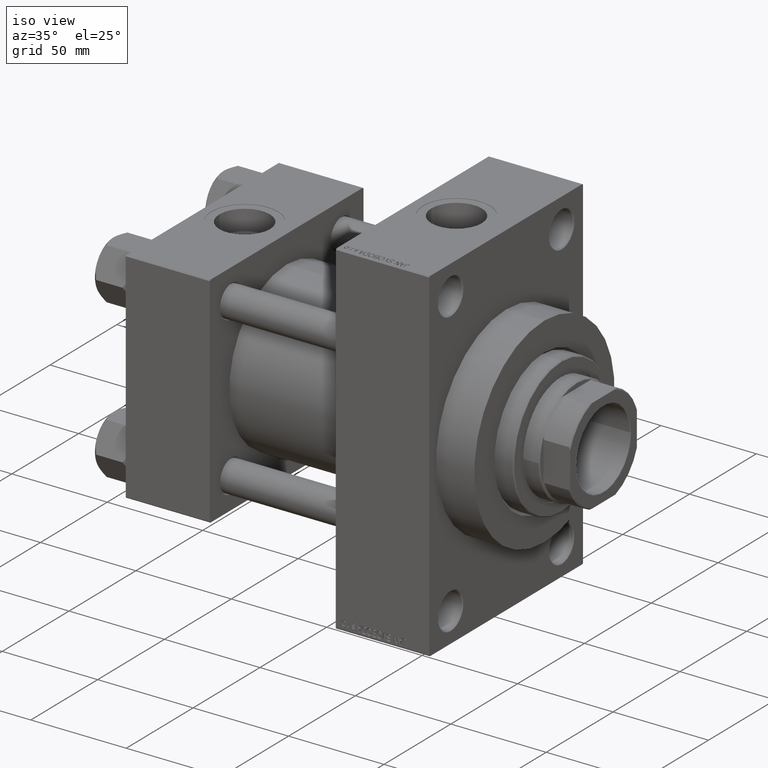
[diagram: clean part render]
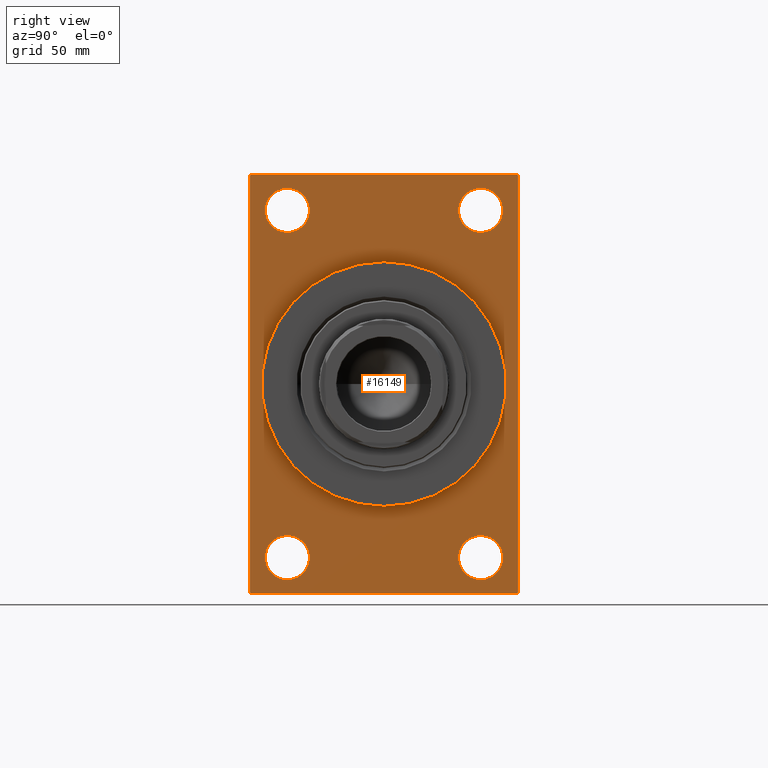
[diagram: tour spotlight — one face highlighted and labeled with its STEP entity id]
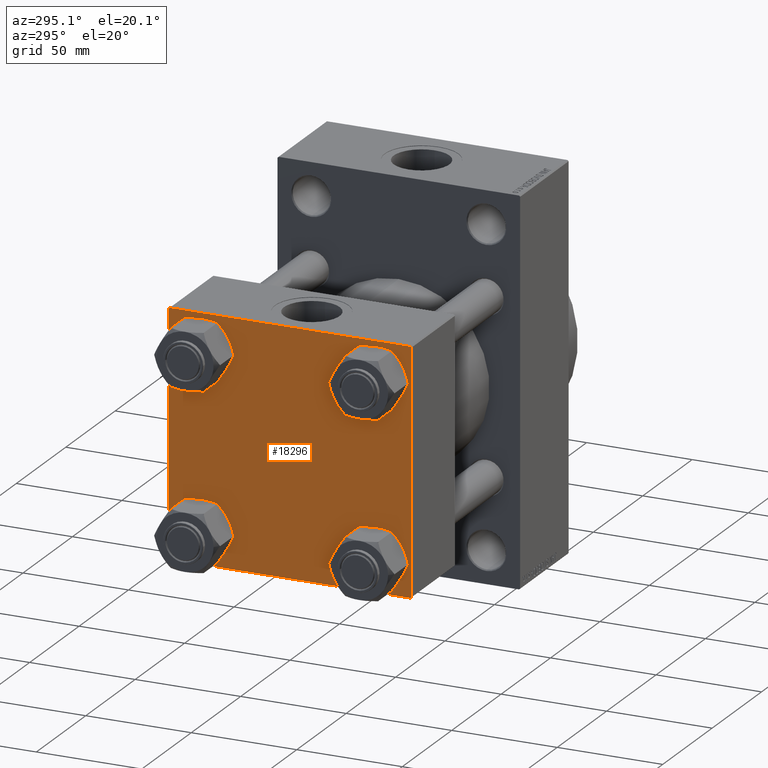
[diagram: tour spotlight — one face highlighted and labeled with its STEP entity id]
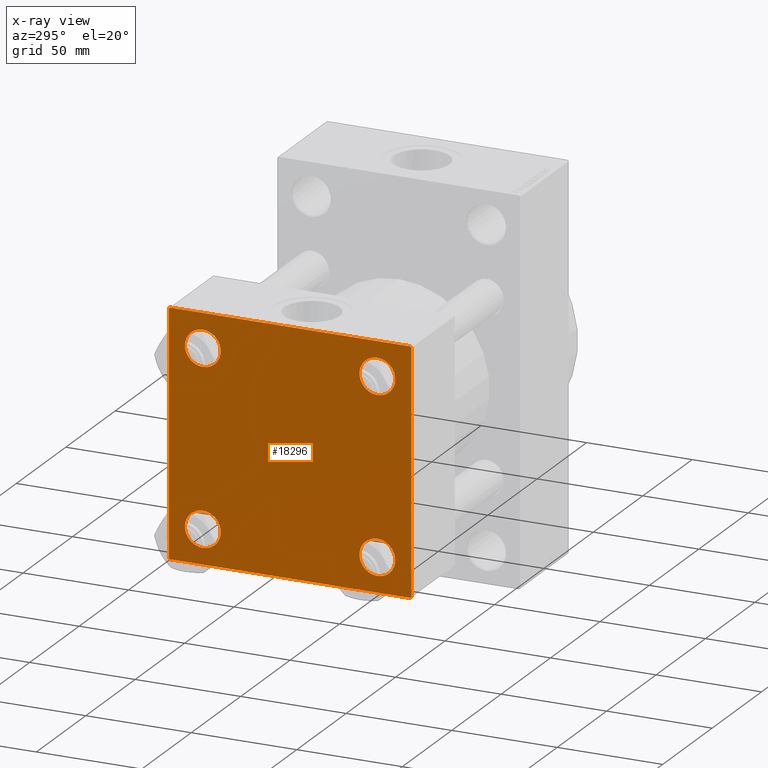
[diagram: x-ray of the same camera — body ghosted, this tour face saturated]
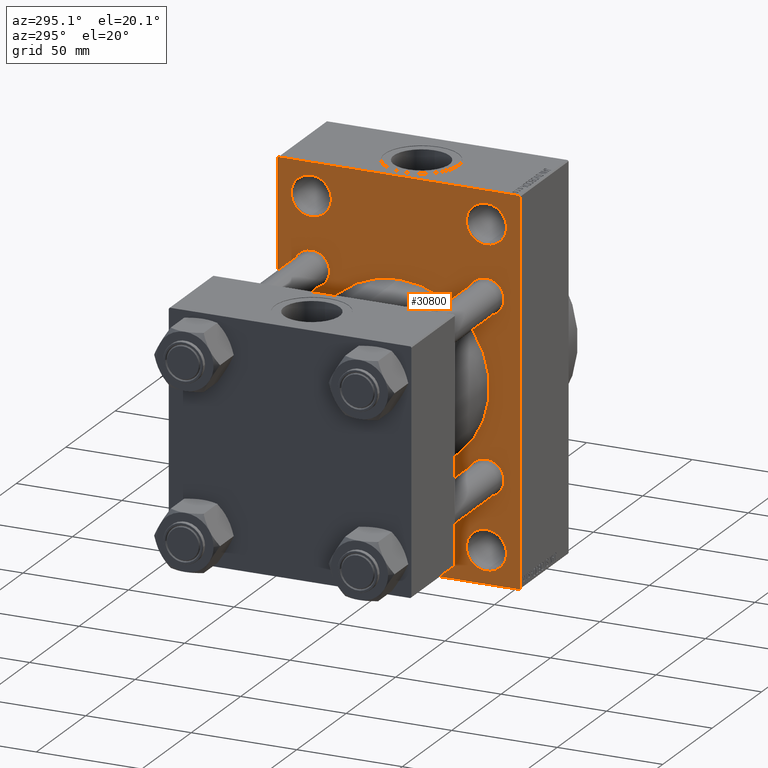
[diagram: tour spotlight — one face highlighted and labeled with its STEP entity id]
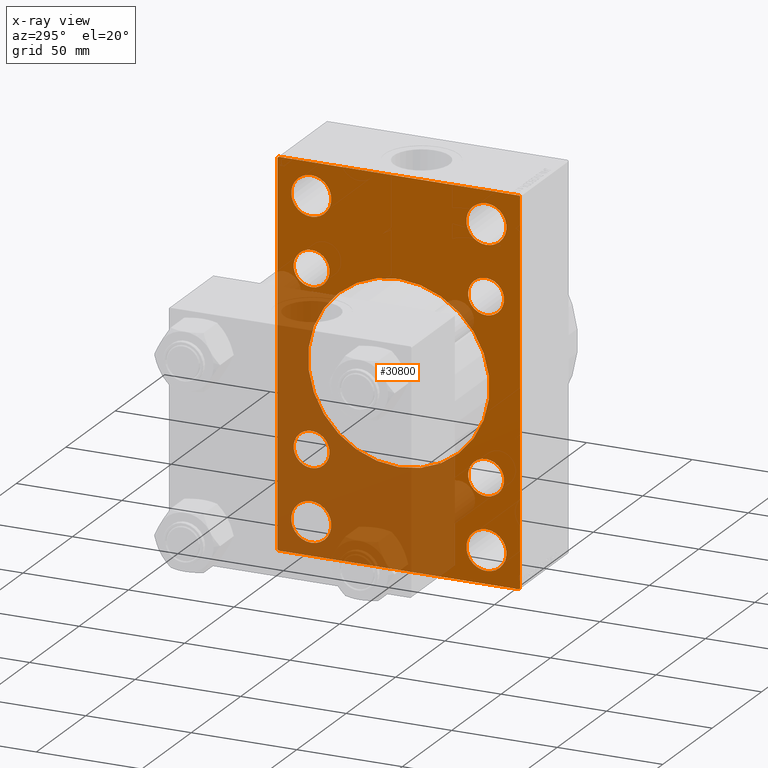
[diagram: x-ray of the same camera — body ghosted, this tour face saturated]
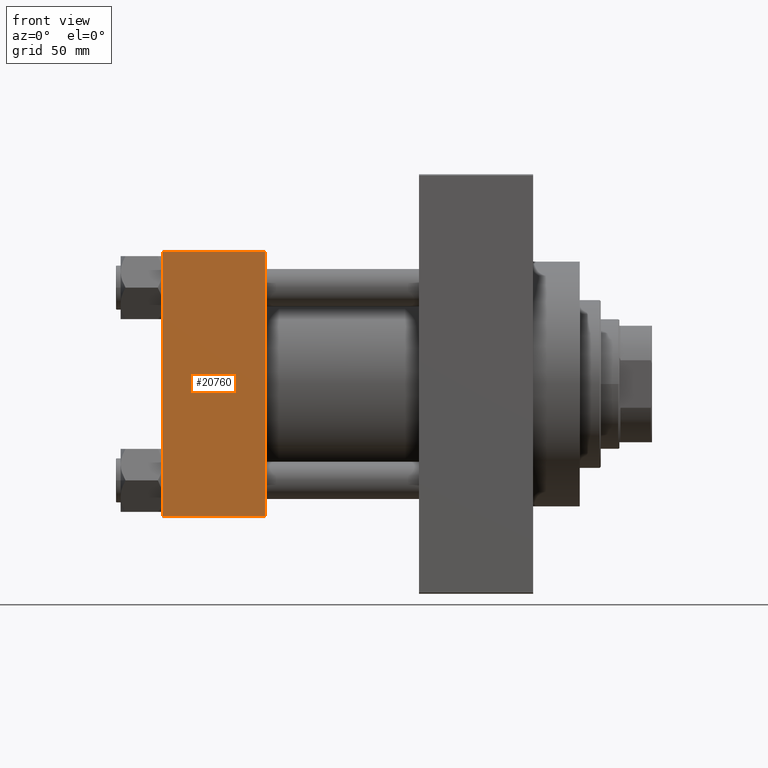
[diagram: tour spotlight — one face highlighted and labeled with its STEP entity id]
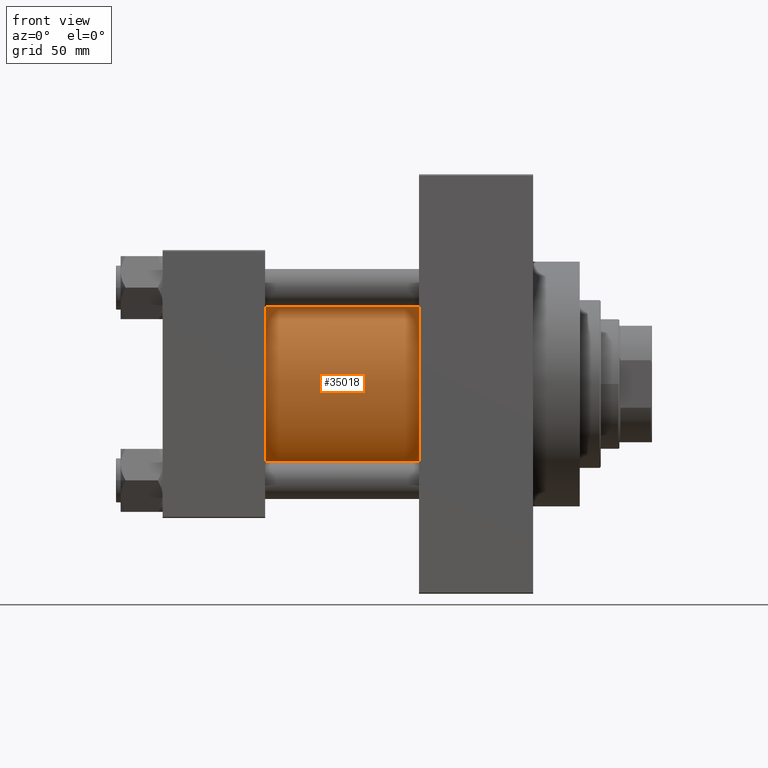
[diagram: tour spotlight — one face highlighted and labeled with its STEP entity id]
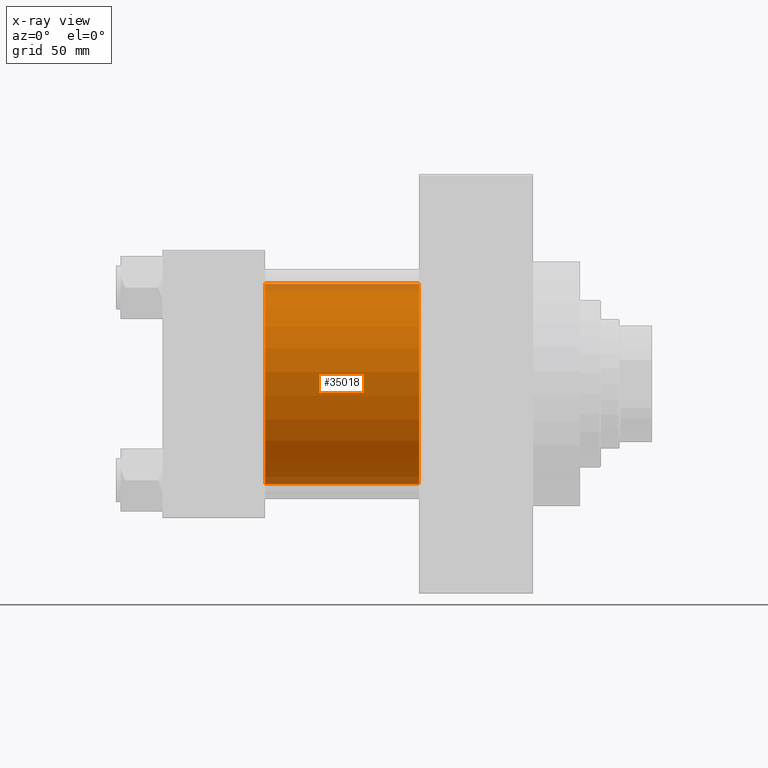
[diagram: x-ray of the same camera — body ghosted, this tour face saturated]
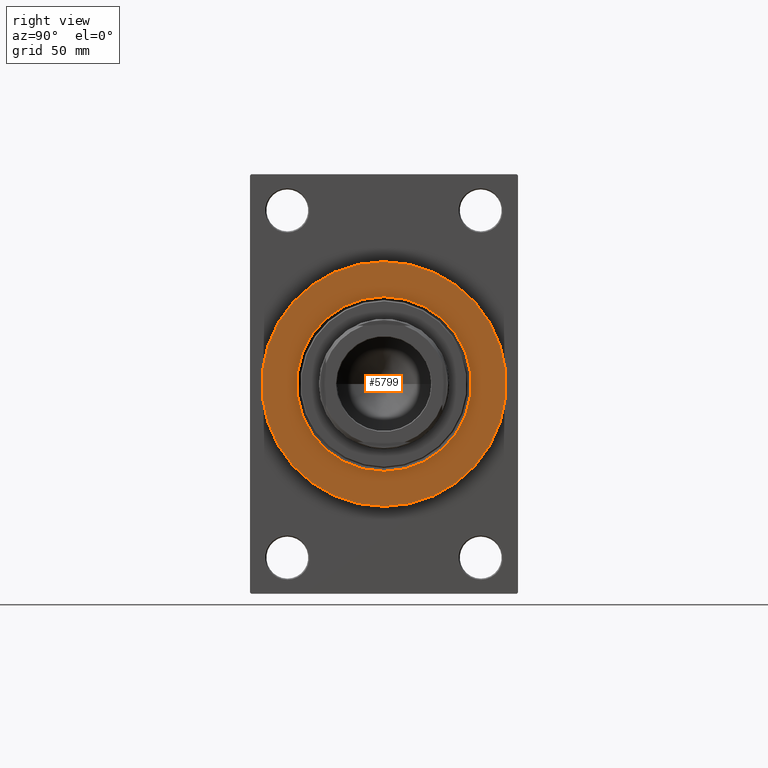
[diagram: tour spotlight — one face highlighted and labeled with its STEP entity id]
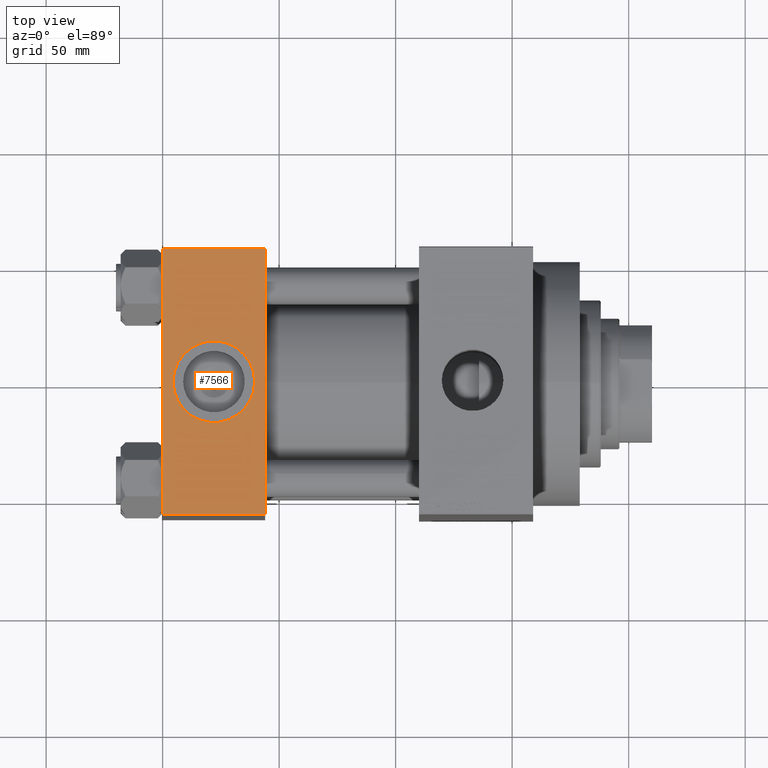
[diagram: tour spotlight — one face highlighted and labeled with its STEP entity id]
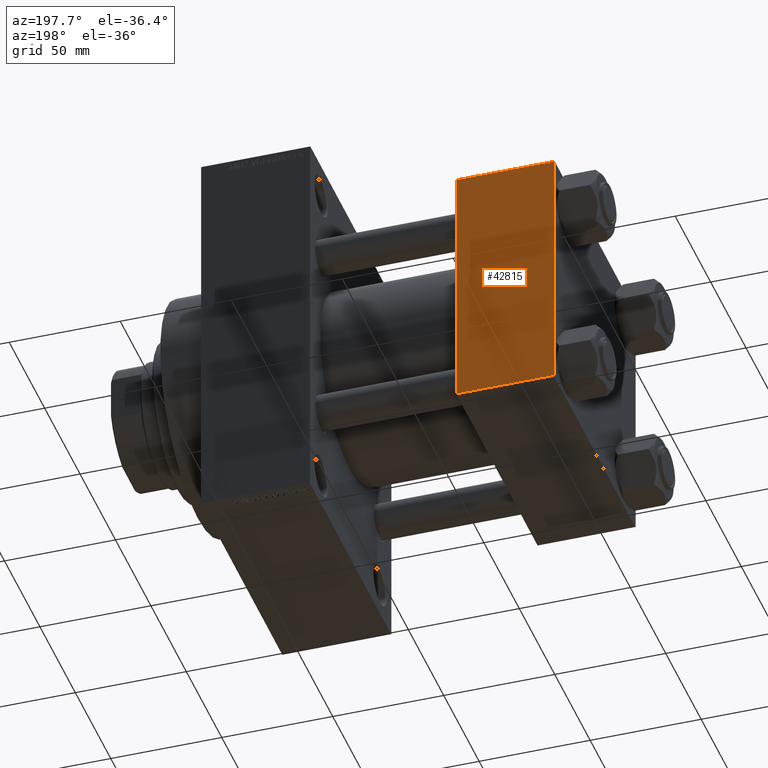
[diagram: tour spotlight — one face highlighted and labeled with its STEP entity id]
A machine part: a face-by-face anatomy tour. The part has 1150 B-rep faces; the first image is the clean iso view, then the 8 largest visible faces are spotlighted one at a time (largest first), each with its STEP entity span.

Face 1 — right view, entity #16149. In plain terms, the highlighted planar face has unit normal (-1, 0, 0).
Definition (entity closure, byte-faithful):
#56 = CARTESIAN_POINT ( 'NONE',  ( 159.0000000000000000, 57.49999999999997868, -89.49999999999990052 ) ) ;
#138 = DIRECTION ( 'NONE',  ( -1.000000000000000000, 0.000000000000000000, -0.000000000000000000 ) ) ;
#158 = CARTESIAN_POINT ( 'NONE',  ( 159.0000000000000000, -41.49999999999999289, 74.50000000000001421 ) ) ;
#187 = PLANE ( 'NONE',  #44802 ) ;
#484 = VERTEX_POINT ( 'NONE', #8277 ) ;
#626 = CARTESIAN_POINT ( 'NONE',  ( 159.0000000000000000, 41.50000000000000711, 84.00000000000001421 ) ) ;
#793 = DIRECTION ( 'NONE',  ( 0.000000000000000000, 0.000000000000000000, 1.000000000000000000 ) ) ;
#1942 = CARTESIAN_POINT ( 'NONE',  ( 159.0000000000000000, -57.50000000000002132, 89.99999999999997158 ) ) ;
#2619 = ORIENTED_EDGE ( 'NONE', *, *, #19336, .T. ) ;
#2687 = VERTEX_POINT ( 'NONE', #22478 ) ;
#2690 = ORIENTED_EDGE ( 'NONE', *, *, #37993, .T. ) ;
#2995 = CARTESIAN_POINT ( 'NONE',  ( 159.0000000000000000, -41.49999999999999289, 74.50000000000001421 ) ) ;
#3158 = ORIENTED_EDGE ( 'NONE', *, *, #16041, .T. ) ;
#3160 = CARTESIAN_POINT ( 'NONE',  ( 159.0000000000000000, -57.50000000000002132, -89.49999999999991473 ) ) ;
#3237 = DIRECTION ( 'NONE',  ( -1.000000000000000000, 0.000000000000000000, -0.000000000000000000 ) ) ;
#3629 = ORIENTED_EDGE ( 'NONE', *, *, #18886, .T. ) ;
#3644 = VERTEX_POINT ( 'NONE', #626 ) ;
#3961 = DIRECTION ( 'NONE',  ( 0.000000000000000000, 0.000000000000000000, 1.000000000000000000 ) ) ;
#4285 = EDGE_LOOP ( 'NONE', ( #10168, #46670 ) ) ;
#4509 = FACE_OUTER_BOUND ( 'NONE', #45794, .T. ) ;
#4889 = DIRECTION ( 'NONE',  ( -1.000000000000000000, 0.000000000000000000, -0.000000000000000000 ) ) ;
#5301 = ORIENTED_EDGE ( 'NONE', *, *, #30059, .T. ) ;
#5469 = LINE ( 'NONE', #24042, #41809 ) ;
#6393 = CARTESIAN_POINT ( 'NONE',  ( 159.0000000000000000, 41.50000000000000711, -84.00000000000000000 ) ) ;
#6849 = AXIS2_PLACEMENT_3D ( 'NONE', #33185, #7828, #22062 ) ;
#7025 = EDGE_CURVE ( 'NONE', #11123, #41233, #46943, .T. ) ;
#7529 = DIRECTION ( 'NONE',  ( 0.000000000000000000, 0.7071067811865574537, -0.7071067811865376918 ) ) ;
#7828 = DIRECTION ( 'NONE',  ( 1.000000000000000000, 0.000000000000000000, 0.000000000000000000 ) ) ;
#7885 = CARTESIAN_POINT ( 'NONE',  ( 159.0000000000000000, -41.49999999999999289, -74.49999999999998579 ) ) ;
#8121 = DIRECTION ( 'NONE',  ( 0.000000000000000000, 0.000000000000000000, 1.000000000000000000 ) ) ;
#8136 = FACE_BOUND ( 'NONE', #26200, .T. ) ;
#8199 = DIRECTION ( 'NONE',  ( 0.000000000000000000, -0.7071067811865474617, 0.7071067811865474617 ) ) ;
#8277 = CARTESIAN_POINT ( 'NONE',  ( 159.0000000000000000, 41.50000000000000711, 65.00000000000000000 ) ) ;
#8446 = ORIENTED_EDGE ( 'NONE', *, *, #16705, .T. ) ;
#8801 = DIRECTION ( 'NONE',  ( -1.000000000000000000, 0.000000000000000000, -0.000000000000000000 ) ) ;
#9530 = EDGE_CURVE ( 'NONE', #42812, #31646, #44586, .T. ) ;
#9539 = CARTESIAN_POINT ( 'NONE',  ( 159.0000000000000000, -56.99999999999996447, -90.00000000000001421 ) ) ;
#9728 = VERTEX_POINT ( 'NONE', #3160 ) ;
#9904 = DIRECTION ( 'NONE',  ( 0.000000000000000000, 0.000000000000000000, -1.000000000000000000 ) ) ;
#10017 = CARTESIAN_POINT ( 'NONE',  ( 159.0000000000000000, 6.429395695523604744E-15, -52.50000000000000711 ) ) ;
#10168 = ORIENTED_EDGE ( 'NONE', *, *, #26954, .F. ) ;
#10647 = ORIENTED_EDGE ( 'NONE', *, *, #22045, .T. ) ;
#10865 = AXIS2_PLACEMENT_3D ( 'NONE', #38485, #8801, #38253 ) ;
#10878 = CARTESIAN_POINT ( 'NONE',  ( 159.0000000000000000, 57.49999999999997868, -90.00000000000000000 ) ) ;
#10910 = ORIENTED_EDGE ( 'NONE', *, *, #38547, .F. ) ;
#11123 = VERTEX_POINT ( 'NONE', #10017 ) ;
#11150 = LINE ( 'NONE', #40589, #47036 ) ;
#11277 = FACE_BOUND ( 'NONE', #17963, .T. ) ;
#11524 = VECTOR ( 'NONE', #45517, 1000.000000000000000 ) ;
#11756 = CARTESIAN_POINT ( 'NONE',  ( 159.0000000000000000, -57.50000000000002132, 89.49999999999994316 ) ) ;
#11758 = FACE_BOUND ( 'NONE', #28765, .T. ) ;
#11882 = EDGE_CURVE ( 'NONE', #24012, #43370, #45275, .T. ) ;
#11928 = DIRECTION ( 'NONE',  ( -1.000000000000000000, 0.000000000000000000, -0.000000000000000000 ) ) ;
#12283 = CARTESIAN_POINT ( 'NONE',  ( 159.0000000000000000, -41.49999999999999289, 84.00000000000001421 ) ) ;
#12813 = LINE ( 'NONE', #1942, #22966 ) ;
#13122 = CARTESIAN_POINT ( 'NONE',  ( 159.0000000000000000, -41.49999999999999289, -83.99999999999998579 ) ) ;
#13499 = VERTEX_POINT ( 'NONE', #36166 ) ;
#14798 = EDGE_CURVE ( 'NONE', #9728, #43474, #11150, .T. ) ;
#14852 = DIRECTION ( 'NONE',  ( 0.000000000000000000, 0.000000000000000000, 1.000000000000000000 ) ) ;
#16041 = EDGE_CURVE ( 'NONE', #13499, #24012, #39292, .T. ) ;
#16149 = ADVANCED_FACE ( 'NONE', ( #8136, #11277, #11758, #37581, #23082, #4509 ), #187, .F. ) ;
#16306 = AXIS2_PLACEMENT_3D ( 'NONE', #33213, #138, #14852 ) ;
#16322 = DIRECTION ( 'NONE',  ( -0.000000000000000000, 0.7071067811865574537, 0.7071067811865376918 ) ) ;
#16705 = EDGE_CURVE ( 'NONE', #31646, #42812, #19376, .T. ) ;
#16834 = CARTESIAN_POINT ( 'NONE',  ( 159.0000000000000000, 57.49999999999997158, 89.99999999999998579 ) ) ;
#17020 = CARTESIAN_POINT ( 'NONE',  ( 159.0000000000000000, -57.50000000000002132, 89.49999999999994316 ) ) ;
#17712 = DIRECTION ( 'NONE',  ( -1.000000000000000000, 0.000000000000000000, -0.000000000000000000 ) ) ;
#17891 = ORIENTED_EDGE ( 'NONE', *, *, #40198, .T. ) ;
#17963 = EDGE_LOOP ( 'NONE', ( #3629, #42930 ) ) ;
#18198 = DIRECTION ( 'NONE',  ( 0.000000000000000000, 0.000000000000000000, 1.000000000000000000 ) ) ;
#18886 = EDGE_CURVE ( 'NONE', #33536, #20342, #20190, .T. ) ;
#18896 = CARTESIAN_POINT ( 'NONE',  ( 159.0000000000000000, 41.50000000000000711, -74.50000000000000000 ) ) ;
#19336 = EDGE_CURVE ( 'NONE', #20434, #13499, #24274, .T. ) ;
#19376 = CIRCLE ( 'NONE', #10865, 9.500000000000008882 ) ;
#20190 = CIRCLE ( 'NONE', #25611, 9.500000000000008882 ) ;
#20342 = VERTEX_POINT ( 'NONE', #46294 ) ;
#20434 = VERTEX_POINT ( 'NONE', #40026 ) ;
#21737 = DIRECTION ( 'NONE',  ( 0.000000000000000000, -1.000000000000000000, -1.206764157201257045E-16 ) ) ;
#22045 = EDGE_CURVE ( 'NONE', #484, #3644, #31456, .T. ) ;
#22062 = DIRECTION ( 'NONE',  ( 0.000000000000000000, 0.000000000000000000, -1.000000000000000000 ) ) ;
#22478 = CARTESIAN_POINT ( 'NONE',  ( 159.0000000000000000, -41.49999999999999289, 65.00000000000000000 ) ) ;
#22822 = VERTEX_POINT ( 'NONE', #12283 ) ;
#22966 = VECTOR ( 'NONE', #9904, 1000.000000000000000 ) ;
#23082 = FACE_BOUND ( 'NONE', #4285, .T. ) ;
#23790 = CIRCLE ( 'NONE', #6849, 52.50000000000000711 ) ;
#24012 = VERTEX_POINT ( 'NONE', #42372 ) ;
#24042 = CARTESIAN_POINT ( 'NONE',  ( 159.0000000000000000, 57.49999999999997868, -89.49999999999995737 ) ) ;
#24274 = LINE ( 'NONE', #30634, #28713 ) ;
#24327 = EDGE_CURVE ( 'NONE', #43370, #9728, #12813, .T. ) ;
#24690 = AXIS2_PLACEMENT_3D ( 'NONE', #2995, #17712, #18198 ) ;
#25611 = AXIS2_PLACEMENT_3D ( 'NONE', #7885, #41175, #8121 ) ;
#25621 = VECTOR ( 'NONE', #40626, 1000.000000000000000 ) ;
#25683 = CARTESIAN_POINT ( 'NONE',  ( 159.0000000000000000, 41.50000000000000711, 74.50000000000001421 ) ) ;
#26200 = EDGE_LOOP ( 'NONE', ( #17891, #5301 ) ) ;
#26303 = DIRECTION ( 'NONE',  ( 1.000000000000000000, 0.000000000000000000, 0.000000000000000000 ) ) ;
#26319 = ORIENTED_EDGE ( 'NONE', *, *, #9530, .T. ) ;
#26407 = ORIENTED_EDGE ( 'NONE', *, *, #30090, .T. ) ;
#26891 = AXIS2_PLACEMENT_3D ( 'NONE', #33332, #26303, #36709 ) ;
#26954 = EDGE_CURVE ( 'NONE', #41233, #11123, #23790, .T. ) ;
#27292 = VERTEX_POINT ( 'NONE', #56 ) ;
#28239 = EDGE_LOOP ( 'NONE', ( #10647, #26407 ) ) ;
#28713 = VECTOR ( 'NONE', #8199, 1000.000000000000114 ) ;
#28765 = EDGE_LOOP ( 'NONE', ( #26319, #8446 ) ) ;
#29158 = AXIS2_PLACEMENT_3D ( 'NONE', #18896, #4889, #793 ) ;
#30032 = CARTESIAN_POINT ( 'NONE',  ( 159.0000000000000000, 56.99999999999992895, -90.00000000000000000 ) ) ;
#30059 = EDGE_CURVE ( 'NONE', #22822, #2687, #47049, .T. ) ;
#30090 = EDGE_CURVE ( 'NONE', #3644, #484, #31625, .T. ) ;
#30198 = ORIENTED_EDGE ( 'NONE', *, *, #37439, .F. ) ;
#30272 = DIRECTION ( 'NONE',  ( 0.000000000000000000, 0.000000000000000000, 1.000000000000000000 ) ) ;
#30634 = CARTESIAN_POINT ( 'NONE',  ( 159.0000000000000000, 56.99999999999994316, 89.99999999999998579 ) ) ;
#31422 = ORIENTED_EDGE ( 'NONE', *, *, #14798, .T. ) ;
#31456 = CIRCLE ( 'NONE', #43781, 9.500000000000008882 ) ;
#31625 = CIRCLE ( 'NONE', #41653, 9.500000000000008882 ) ;
#31646 = VERTEX_POINT ( 'NONE', #46994 ) ;
#31657 = ORIENTED_EDGE ( 'NONE', *, *, #24327, .T. ) ;
#33185 = CARTESIAN_POINT ( 'NONE',  ( 159.0000000000000000, 0.000000000000000000, 0.000000000000000000 ) ) ;
#33213 = CARTESIAN_POINT ( 'NONE',  ( 159.0000000000000000, -41.49999999999999289, -74.49999999999998579 ) ) ;
#33295 = EDGE_CURVE ( 'NONE', #20342, #33536, #40988, .T. ) ;
#33332 = CARTESIAN_POINT ( 'NONE',  ( 159.0000000000000000, 0.000000000000000000, 0.000000000000000000 ) ) ;
#33497 = DIRECTION ( 'NONE',  ( -0.000000000000000000, 0.000000000000000000, 1.000000000000000000 ) ) ;
#33536 = VERTEX_POINT ( 'NONE', #13122 ) ;
#34641 = DIRECTION ( 'NONE',  ( -1.000000000000000000, 0.000000000000000000, -0.000000000000000000 ) ) ;
#34726 = DIRECTION ( 'NONE',  ( 0.000000000000000000, -1.000000000000000000, -1.206764157201257291E-16 ) ) ;
#34928 = CIRCLE ( 'NONE', #47244, 9.500000000000008882 ) ;
#36166 = CARTESIAN_POINT ( 'NONE',  ( 159.0000000000000000, 56.99999999999994316, 89.99999999999998579 ) ) ;
#36709 = DIRECTION ( 'NONE',  ( 0.000000000000000000, 0.000000000000000000, -1.000000000000000000 ) ) ;
#37439 = EDGE_CURVE ( 'NONE', #41314, #43474, #47314, .T. ) ;
#37581 = FACE_BOUND ( 'NONE', #28239, .T. ) ;
#37993 = EDGE_CURVE ( 'NONE', #41314, #27292, #5469, .T. ) ;
#38253 = DIRECTION ( 'NONE',  ( 0.000000000000000000, 0.000000000000000000, 1.000000000000000000 ) ) ;
#38485 = CARTESIAN_POINT ( 'NONE',  ( 159.0000000000000000, 41.50000000000000711, -74.50000000000000000 ) ) ;
#38547 = EDGE_CURVE ( 'NONE', #20434, #27292, #39196, .T. ) ;
#39196 = LINE ( 'NONE', #40867, #25621 ) ;
#39292 = LINE ( 'NONE', #16834, #44008 ) ;
#40026 = CARTESIAN_POINT ( 'NONE',  ( 159.0000000000000000, 57.49999999999997158, 89.49999999999995737 ) ) ;
#40198 = EDGE_CURVE ( 'NONE', #2687, #22822, #34928, .T. ) ;
#40589 = CARTESIAN_POINT ( 'NONE',  ( 159.0000000000000000, -56.99999999999996447, -90.00000000000001421 ) ) ;
#40626 = DIRECTION ( 'NONE',  ( 0.000000000000000000, 3.854941057726238467E-17, -1.000000000000000000 ) ) ;
#40717 = DIRECTION ( 'NONE',  ( -1.000000000000000000, 0.000000000000000000, -0.000000000000000000 ) ) ;
#40867 = CARTESIAN_POINT ( 'NONE',  ( 159.0000000000000000, 57.49999999999997158, 89.99999999999998579 ) ) ;
#40956 = CARTESIAN_POINT ( 'NONE',  ( 159.0000000000000000, 0.000000000000000000, 0.000000000000000000 ) ) ;
#40988 = CIRCLE ( 'NONE', #16306, 9.500000000000008882 ) ;
#41122 = CARTESIAN_POINT ( 'NONE',  ( 159.0000000000000000, 41.50000000000000711, 74.50000000000001421 ) ) ;
#41175 = DIRECTION ( 'NONE',  ( -1.000000000000000000, 0.000000000000000000, -0.000000000000000000 ) ) ;
#41233 = VERTEX_POINT ( 'NONE', #42588 ) ;
#41314 = VERTEX_POINT ( 'NONE', #30032 ) ;
#41653 = AXIS2_PLACEMENT_3D ( 'NONE', #25683, #3237, #3961 ) ;
#41809 = VECTOR ( 'NONE', #16322, 999.9999999999998863 ) ;
#42340 = DIRECTION ( 'NONE',  ( 0.000000000000000000, 0.000000000000000000, 1.000000000000000000 ) ) ;
#42372 = CARTESIAN_POINT ( 'NONE',  ( 159.0000000000000000, -56.99999999999998579, 89.99999999999997158 ) ) ;
#42588 = CARTESIAN_POINT ( 'NONE',  ( 159.0000000000000000, 0.000000000000000000, 52.50000000000000711 ) ) ;
#42812 = VERTEX_POINT ( 'NONE', #6393 ) ;
#42930 = ORIENTED_EDGE ( 'NONE', *, *, #33295, .T. ) ;
#43324 = VECTOR ( 'NONE', #21737, 1000.000000000000000 ) ;
#43370 = VERTEX_POINT ( 'NONE', #17020 ) ;
#43474 = VERTEX_POINT ( 'NONE', #9539 ) ;
#43781 = AXIS2_PLACEMENT_3D ( 'NONE', #41122, #11928, #30272 ) ;
#44008 = VECTOR ( 'NONE', #34726, 1000.000000000000000 ) ;
#44586 = CIRCLE ( 'NONE', #29158, 9.500000000000008882 ) ;
#44802 = AXIS2_PLACEMENT_3D ( 'NONE', #40956, #40717, #33497 ) ;
#45275 = LINE ( 'NONE', #11756, #11524 ) ;
#45517 = DIRECTION ( 'NONE',  ( -0.000000000000000000, -0.7071067811865524577, -0.7071067811865426878 ) ) ;
#45794 = EDGE_LOOP ( 'NONE', ( #31657, #31422, #30198, #2690, #10910, #2619, #3158, #46948 ) ) ;
#46294 = CARTESIAN_POINT ( 'NONE',  ( 159.0000000000000000, -41.49999999999999289, -64.99999999999997158 ) ) ;
#46670 = ORIENTED_EDGE ( 'NONE', *, *, #7025, .F. ) ;
#46943 = CIRCLE ( 'NONE', #26891, 52.50000000000000711 ) ;
#46948 = ORIENTED_EDGE ( 'NONE', *, *, #11882, .T. ) ;
#46994 = CARTESIAN_POINT ( 'NONE',  ( 159.0000000000000000, 41.50000000000000711, -64.99999999999998579 ) ) ;
#47036 = VECTOR ( 'NONE', #7529, 999.9999999999998863 ) ;
#47049 = CIRCLE ( 'NONE', #24690, 9.500000000000008882 ) ;
#47244 = AXIS2_PLACEMENT_3D ( 'NONE', #158, #34641, #42340 ) ;
#47314 = LINE ( 'NONE', #10878, #43324 ) ;

Face 2 — auxiliary view, entity #18296. An x-ray twin of the same camera follows (body ghosted, this face saturated) — the face is partly hidden behind the body. In plain terms, the highlighted planar face has unit normal (-1, 0, 0).
Definition (entity closure, byte-faithful):
#167 = EDGE_LOOP ( 'NONE', ( #6959, #9392 ) ) ;
#1040 = CARTESIAN_POINT ( 'NONE',  ( 0.000000000000000000, -41.34999999999998721, 32.85000000000001563 ) ) ;
#1105 = EDGE_LOOP ( 'NONE', ( #32860, #22440 ) ) ;
#1363 = LINE ( 'NONE', #45057, #1421 ) ;
#1421 = VECTOR ( 'NONE', #23557, 1000.000000000000000 ) ;
#1463 = CARTESIAN_POINT ( 'NONE',  ( 0.000000000000000000, 57.00000000000000711, 57.50000000000000711 ) ) ;
#1467 = DIRECTION ( 'NONE',  ( 1.000000000000000000, -0.000000000000000000, 0.000000000000000000 ) ) ;
#1475 = CIRCLE ( 'NONE', #4550, 8.499999999999992895 ) ;
#1652 = AXIS2_PLACEMENT_3D ( 'NONE', #25068, #40036, #24833 ) ;
#1678 = FACE_BOUND ( 'NONE', #167, .T. ) ;
#2043 = CARTESIAN_POINT ( 'NONE',  ( 0.000000000000000000, -41.34999999999998721, -41.35000000000000853 ) ) ;
#4115 = DIRECTION ( 'NONE',  ( 1.000000000000000000, -0.000000000000000000, 0.000000000000000000 ) ) ;
#4205 = VERTEX_POINT ( 'NONE', #41050 ) ;
#4474 = ORIENTED_EDGE ( 'NONE', *, *, #23467, .T. ) ;
#4550 = AXIS2_PLACEMENT_3D ( 'NONE', #7001, #14480, #14000 ) ;
#4864 = VERTEX_POINT ( 'NONE', #6564 ) ;
#5032 = VERTEX_POINT ( 'NONE', #1463 ) ;
#5075 = VERTEX_POINT ( 'NONE', #6029 ) ;
#5127 = VERTEX_POINT ( 'NONE', #31870 ) ;
#5287 = CIRCLE ( 'NONE', #41549, 8.499999999999992895 ) ;
#5540 = PLANE ( 'NONE',  #33319 ) ;
#5551 = AXIS2_PLACEMENT_3D ( 'NONE', #5776, #31134, #17354 ) ;
#5671 = DIRECTION ( 'NONE',  ( 0.000000000000000000, 0.000000000000000000, 1.000000000000000000 ) ) ;
#5776 = CARTESIAN_POINT ( 'NONE',  ( 0.000000000000000000, -41.34999999999998721, -41.35000000000000853 ) ) ;
#5847 = EDGE_CURVE ( 'NONE', #14196, #14846, #46899, .T. ) ;
#6029 = CARTESIAN_POINT ( 'NONE',  ( 0.000000000000000000, 41.34999999999999432, -49.85000000000000142 ) ) ;
#6050 = EDGE_LOOP ( 'NONE', ( #29572, #47401 ) ) ;
#6467 = ORIENTED_EDGE ( 'NONE', *, *, #22602, .T. ) ;
#6490 = AXIS2_PLACEMENT_3D ( 'NONE', #16182, #1467, #16651 ) ;
#6564 = CARTESIAN_POINT ( 'NONE',  ( 0.000000000000000000, -57.50000000000000711, 57.00000000000000711 ) ) ;
#6754 = DIRECTION ( 'NONE',  ( -0.000000000000000000, -0.7071067811865376918, -0.7071067811865573427 ) ) ;
#6778 = EDGE_CURVE ( 'NONE', #4864, #44798, #1363, .T. ) ;
#6822 = DIRECTION ( 'NONE',  ( 1.000000000000000000, -0.000000000000000000, 0.000000000000000000 ) ) ;
#6959 = ORIENTED_EDGE ( 'NONE', *, *, #18246, .T. ) ;
#7001 = CARTESIAN_POINT ( 'NONE',  ( 0.000000000000000000, -41.34999999999998721, 41.35000000000000853 ) ) ;
#7613 = EDGE_CURVE ( 'NONE', #5032, #13624, #31781, .T. ) ;
#8749 = CARTESIAN_POINT ( 'NONE',  ( 0.000000000000000000, 57.24999999999922551, 57.25000000000081712 ) ) ;
#9032 = LINE ( 'NONE', #34868, #10639 ) ;
#9381 = LINE ( 'NONE', #31843, #41477 ) ;
#9392 = ORIENTED_EDGE ( 'NONE', *, *, #26953, .T. ) ;
#9694 = CARTESIAN_POINT ( 'NONE',  ( 0.000000000000000000, 57.49999999999999289, 57.00000000000003553 ) ) ;
#9726 = LINE ( 'NONE', #46648, #31578 ) ;
#10115 = DIRECTION ( 'NONE',  ( -1.000000000000000000, 0.000000000000000000, -0.000000000000000000 ) ) ;
#10432 = VERTEX_POINT ( 'NONE', #9694 ) ;
#10618 = CARTESIAN_POINT ( 'NONE',  ( 0.000000000000000000, 57.25000000000081712, -57.24999999999922551 ) ) ;
#10639 = VECTOR ( 'NONE', #23745, 1000.000000000000114 ) ;
#10838 = EDGE_LOOP ( 'NONE', ( #42643, #25502 ) ) ;
#10840 = CIRCLE ( 'NONE', #17813, 8.499999999999992895 ) ;
#11981 = CARTESIAN_POINT ( 'NONE',  ( 0.000000000000000000, 41.34999999999999432, 32.85000000000000853 ) ) ;
#12504 = ORIENTED_EDGE ( 'NONE', *, *, #6778, .F. ) ;
#12569 = CARTESIAN_POINT ( 'NONE',  ( 0.000000000000000000, -41.34999999999998721, 49.85000000000000853 ) ) ;
#12605 = DIRECTION ( 'NONE',  ( 0.000000000000000000, 0.7071067811865573427, -0.7071067811865376918 ) ) ;
#12664 = CIRCLE ( 'NONE', #6490, 8.499999999999992895 ) ;
#12934 = EDGE_CURVE ( 'NONE', #5127, #34276, #9726, .T. ) ;
#13428 = DIRECTION ( 'NONE',  ( 0.000000000000000000, -1.000000000000000000, -1.206764157201257045E-16 ) ) ;
#13624 = VERTEX_POINT ( 'NONE', #24119 ) ;
#14000 = DIRECTION ( 'NONE',  ( 0.000000000000000000, 0.000000000000000000, 1.000000000000000000 ) ) ;
#14196 = VERTEX_POINT ( 'NONE', #11981 ) ;
#14288 = ORIENTED_EDGE ( 'NONE', *, *, #25244, .T. ) ;
#14480 = DIRECTION ( 'NONE',  ( 1.000000000000000000, -0.000000000000000000, 0.000000000000000000 ) ) ;
#14716 = CARTESIAN_POINT ( 'NONE',  ( 0.000000000000000000, 57.49999999999999289, 57.50000000000000711 ) ) ;
#14846 = VERTEX_POINT ( 'NONE', #19572 ) ;
#14878 = VERTEX_POINT ( 'NONE', #12569 ) ;
#14949 = LINE ( 'NONE', #14716, #39961 ) ;
#15930 = EDGE_CURVE ( 'NONE', #45739, #5075, #10840, .T. ) ;
#16182 = CARTESIAN_POINT ( 'NONE',  ( 0.000000000000000000, -41.34999999999998721, 41.35000000000000853 ) ) ;
#16651 = DIRECTION ( 'NONE',  ( 0.000000000000000000, 0.000000000000000000, 1.000000000000000000 ) ) ;
#17354 = DIRECTION ( 'NONE',  ( 0.000000000000000000, 0.000000000000000000, 1.000000000000000000 ) ) ;
#17522 = EDGE_CURVE ( 'NONE', #14846, #14196, #24786, .T. ) ;
#17717 = EDGE_LOOP ( 'NONE', ( #6467, #4474, #20204, #14288, #12504, #22558, #42672, #42540 ) ) ;
#17813 = AXIS2_PLACEMENT_3D ( 'NONE', #41248, #26042, #29919 ) ;
#17918 = VERTEX_POINT ( 'NONE', #1040 ) ;
#18246 = EDGE_CURVE ( 'NONE', #34944, #24340, #27906, .T. ) ;
#18296 = ADVANCED_FACE ( 'NONE', ( #24117, #1678, #45837, #46794, #28460 ), #5540, .T. ) ;
#19572 = CARTESIAN_POINT ( 'NONE',  ( 0.000000000000000000, 41.34999999999999432, 49.85000000000000142 ) ) ;
#20204 = ORIENTED_EDGE ( 'NONE', *, *, #12934, .T. ) ;
#21334 = DIRECTION ( 'NONE',  ( 1.000000000000000000, -0.000000000000000000, 0.000000000000000000 ) ) ;
#22440 = ORIENTED_EDGE ( 'NONE', *, *, #23456, .T. ) ;
#22558 = ORIENTED_EDGE ( 'NONE', *, *, #24936, .T. ) ;
#22602 = EDGE_CURVE ( 'NONE', #10432, #4205, #14949, .T. ) ;
#23456 = EDGE_CURVE ( 'NONE', #17918, #14878, #1475, .T. ) ;
#23467 = EDGE_CURVE ( 'NONE', #4205, #5127, #28723, .T. ) ;
#23557 = DIRECTION ( 'NONE',  ( 0.000000000000000000, 0.000000000000000000, -1.000000000000000000 ) ) ;
#23745 = DIRECTION ( 'NONE',  ( -0.000000000000000000, 0.7071067811865376918, 0.7071067811865573427 ) ) ;
#24117 = FACE_BOUND ( 'NONE', #1105, .T. ) ;
#24119 = CARTESIAN_POINT ( 'NONE',  ( 0.000000000000000000, -57.00000000000003553, 57.49999999999999289 ) ) ;
#24340 = VERTEX_POINT ( 'NONE', #46098 ) ;
#24786 = CIRCLE ( 'NONE', #1652, 8.499999999999992895 ) ;
#24833 = DIRECTION ( 'NONE',  ( 0.000000000000000000, 0.000000000000000000, 1.000000000000000000 ) ) ;
#24843 = DIRECTION ( 'NONE',  ( -0.000000000000000000, 0.000000000000000000, 1.000000000000000000 ) ) ;
#24936 = EDGE_CURVE ( 'NONE', #4864, #13624, #9032, .T. ) ;
#25068 = CARTESIAN_POINT ( 'NONE',  ( 0.000000000000000000, 41.34999999999999432, 41.35000000000000142 ) ) ;
#25244 = EDGE_CURVE ( 'NONE', #34276, #44798, #9381, .T. ) ;
#25502 = ORIENTED_EDGE ( 'NONE', *, *, #39592, .T. ) ;
#26042 = DIRECTION ( 'NONE',  ( 1.000000000000000000, -0.000000000000000000, 0.000000000000000000 ) ) ;
#26953 = EDGE_CURVE ( 'NONE', #24340, #34944, #5287, .T. ) ;
#27906 = CIRCLE ( 'NONE', #5551, 8.499999999999992895 ) ;
#28460 = FACE_OUTER_BOUND ( 'NONE', #17717, .T. ) ;
#28721 = CIRCLE ( 'NONE', #37245, 8.499999999999992895 ) ;
#28723 = LINE ( 'NONE', #10618, #40786 ) ;
#29436 = DIRECTION ( 'NONE',  ( 0.000000000000000000, 0.000000000000000000, -1.000000000000000000 ) ) ;
#29521 = VECTOR ( 'NONE', #12605, 1000.000000000000114 ) ;
#29572 = ORIENTED_EDGE ( 'NONE', *, *, #17522, .T. ) ;
#29709 = CARTESIAN_POINT ( 'NONE',  ( 0.000000000000000000, 41.34999999999999432, -41.35000000000000142 ) ) ;
#29919 = DIRECTION ( 'NONE',  ( 0.000000000000000000, 0.000000000000000000, 1.000000000000000000 ) ) ;
#29942 = DIRECTION ( 'NONE',  ( 0.000000000000000000, 0.000000000000000000, 1.000000000000000000 ) ) ;
#31134 = DIRECTION ( 'NONE',  ( 1.000000000000000000, -0.000000000000000000, 0.000000000000000000 ) ) ;
#31519 = AXIS2_PLACEMENT_3D ( 'NONE', #38240, #6822, #38935 ) ;
#31578 = VECTOR ( 'NONE', #46887, 1000.000000000000000 ) ;
#31781 = LINE ( 'NONE', #46484, #39232 ) ;
#31843 = CARTESIAN_POINT ( 'NONE',  ( 0.000000000000000000, -57.25000000000000711, -57.25000000000000711 ) ) ;
#31870 = CARTESIAN_POINT ( 'NONE',  ( 0.000000000000000000, 57.00000000000002132, -57.49999999999999289 ) ) ;
#32860 = ORIENTED_EDGE ( 'NONE', *, *, #42870, .T. ) ;
#33319 = AXIS2_PLACEMENT_3D ( 'NONE', #43175, #10115, #24843 ) ;
#33623 = CARTESIAN_POINT ( 'NONE',  ( 0.000000000000000000, 41.34999999999999432, -32.85000000000000853 ) ) ;
#34276 = VERTEX_POINT ( 'NONE', #40672 ) ;
#34282 = CARTESIAN_POINT ( 'NONE',  ( 0.000000000000000000, -41.34999999999998721, -32.85000000000001563 ) ) ;
#34868 = CARTESIAN_POINT ( 'NONE',  ( -0.000000000000000000, -57.25000000000081712, 57.24999999999922551 ) ) ;
#34944 = VERTEX_POINT ( 'NONE', #34282 ) ;
#35574 = EDGE_CURVE ( 'NONE', #5032, #10432, #41810, .T. ) ;
#35705 = DIRECTION ( 'NONE',  ( 0.000000000000000000, -0.7071067811865474617, 0.7071067811865474617 ) ) ;
#37245 = AXIS2_PLACEMENT_3D ( 'NONE', #29709, #4115, #29942 ) ;
#38240 = CARTESIAN_POINT ( 'NONE',  ( 0.000000000000000000, 41.34999999999999432, 41.35000000000000142 ) ) ;
#38935 = DIRECTION ( 'NONE',  ( 0.000000000000000000, 0.000000000000000000, 1.000000000000000000 ) ) ;
#39232 = VECTOR ( 'NONE', #13428, 1000.000000000000000 ) ;
#39592 = EDGE_CURVE ( 'NONE', #5075, #45739, #28721, .T. ) ;
#39961 = VECTOR ( 'NONE', #29436, 1000.000000000000000 ) ;
#40036 = DIRECTION ( 'NONE',  ( 1.000000000000000000, -0.000000000000000000, 0.000000000000000000 ) ) ;
#40672 = CARTESIAN_POINT ( 'NONE',  ( 0.000000000000000000, -57.00000000000000711, -57.50000000000000711 ) ) ;
#40786 = VECTOR ( 'NONE', #6754, 1000.000000000000114 ) ;
#41050 = CARTESIAN_POINT ( 'NONE',  ( 0.000000000000000000, 57.49999999999999289, -57.00000000000000711 ) ) ;
#41248 = CARTESIAN_POINT ( 'NONE',  ( 0.000000000000000000, 41.34999999999999432, -41.35000000000000142 ) ) ;
#41477 = VECTOR ( 'NONE', #35705, 1000.000000000000114 ) ;
#41549 = AXIS2_PLACEMENT_3D ( 'NONE', #2043, #21334, #5671 ) ;
#41810 = LINE ( 'NONE', #8749, #29521 ) ;
#42540 = ORIENTED_EDGE ( 'NONE', *, *, #35574, .T. ) ;
#42643 = ORIENTED_EDGE ( 'NONE', *, *, #15930, .T. ) ;
#42672 = ORIENTED_EDGE ( 'NONE', *, *, #7613, .F. ) ;
#42870 = EDGE_CURVE ( 'NONE', #14878, #17918, #12664, .T. ) ;
#43175 = CARTESIAN_POINT ( 'NONE',  ( 0.000000000000000000, 0.000000000000000000, 0.000000000000000000 ) ) ;
#44798 = VERTEX_POINT ( 'NONE', #45809 ) ;
#45057 = CARTESIAN_POINT ( 'NONE',  ( 0.000000000000000000, -57.50000000000000711, 57.49999999999999289 ) ) ;
#45739 = VERTEX_POINT ( 'NONE', #33623 ) ;
#45809 = CARTESIAN_POINT ( 'NONE',  ( 0.000000000000000000, -57.50000000000000711, -57.00000000000000711 ) ) ;
#45837 = FACE_BOUND ( 'NONE', #10838, .T. ) ;
#46098 = CARTESIAN_POINT ( 'NONE',  ( 0.000000000000000000, -41.34999999999998721, -49.85000000000000853 ) ) ;
#46484 = CARTESIAN_POINT ( 'NONE',  ( 0.000000000000000000, 57.49999999999999289, 57.50000000000000711 ) ) ;
#46648 = CARTESIAN_POINT ( 'NONE',  ( 0.000000000000000000, 57.49999999999999289, -57.49999999999999289 ) ) ;
#46794 = FACE_BOUND ( 'NONE', #6050, .T. ) ;
#46887 = DIRECTION ( 'NONE',  ( 0.000000000000000000, -1.000000000000000000, -1.206764157201257045E-16 ) ) ;
#46899 = CIRCLE ( 'NONE', #31519, 8.499999999999992895 ) ;
#47401 = ORIENTED_EDGE ( 'NONE', *, *, #5847, .T. ) ;

Face 3 — auxiliary view, entity #30800. An x-ray twin of the same camera follows (body ghosted, this face saturated) — the face is partly hidden behind the body. In plain terms, the highlighted planar face has unit normal (-1, 0, 0).
Definition (entity closure, byte-faithful):
#308 = VECTOR ( 'NONE', #35784, 1000.000000000000000 ) ;
#476 = ORIENTED_EDGE ( 'NONE', *, *, #11612, .T. ) ;
#652 = VERTEX_POINT ( 'NONE', #8753 ) ;
#781 = LINE ( 'NONE', #30472, #35896 ) ;
#898 = EDGE_LOOP ( 'NONE', ( #34602, #34586 ) ) ;
#1051 = DIRECTION ( 'NONE',  ( 1.000000000000000000, -0.000000000000000000, 0.000000000000000000 ) ) ;
#1190 = CARTESIAN_POINT ( 'NONE',  ( 110.0000000000000000, 41.34999999999999432, -41.35000000000000142 ) ) ;
#1551 = CARTESIAN_POINT ( 'NONE',  ( 110.0000000000000000, -41.34999999999998721, 41.35000000000000853 ) ) ;
#1984 = DIRECTION ( 'NONE',  ( 0.000000000000000000, 0.000000000000000000, 1.000000000000000000 ) ) ;
#2038 = CARTESIAN_POINT ( 'NONE',  ( 110.0000000000000000, 41.50000000000000711, -64.99999999999995737 ) ) ;
#2209 = EDGE_CURVE ( 'NONE', #11834, #10390, #44086, .T. ) ;
#2435 = ORIENTED_EDGE ( 'NONE', *, *, #44830, .T. ) ;
#2566 = CIRCLE ( 'NONE', #44982, 9.500000000000035527 ) ;
#3137 = EDGE_CURVE ( 'NONE', #11834, #39513, #39523, .T. ) ;
#3260 = DIRECTION ( 'NONE',  ( 0.000000000000000000, 0.000000000000000000, 1.000000000000000000 ) ) ;
#3298 = VECTOR ( 'NONE', #45715, 1000.000000000000000 ) ;
#3879 = AXIS2_PLACEMENT_3D ( 'NONE', #9112, #45790, #27449 ) ;
#4072 = DIRECTION ( 'NONE',  ( 1.000000000000000000, -0.000000000000000000, 0.000000000000000000 ) ) ;
#4094 = CIRCLE ( 'NONE', #14877, 8.500000000000007105 ) ;
#4263 = CIRCLE ( 'NONE', #10417, 9.500000000000035527 ) ;
#4549 = CARTESIAN_POINT ( 'NONE',  ( 110.0000000000000000, 41.34999999999999432, -32.84999999999999432 ) ) ;
#4934 = VERTEX_POINT ( 'NONE', #18387 ) ;
#5089 = DIRECTION ( 'NONE',  ( 1.000000000000000000, 0.000000000000000000, 0.000000000000000000 ) ) ;
#5173 = CARTESIAN_POINT ( 'NONE',  ( 110.0000000000000000, 57.49999999999997868, -89.49999999999990052 ) ) ;
#5208 = CARTESIAN_POINT ( 'NONE',  ( 110.0000000000000000, 56.99999999999994316, 89.99999999999998579 ) ) ;
#5325 = DIRECTION ( 'NONE',  ( 1.000000000000000000, -0.000000000000000000, 0.000000000000000000 ) ) ;
#5453 = CIRCLE ( 'NONE', #32437, 9.500000000000035527 ) ;
#5581 = CIRCLE ( 'NONE', #38738, 8.500000000000007105 ) ;
#5744 = DIRECTION ( 'NONE',  ( 1.000000000000000000, -0.000000000000000000, 0.000000000000000000 ) ) ;
#5821 = DIRECTION ( 'NONE',  ( 1.000000000000000000, -0.000000000000000000, 0.000000000000000000 ) ) ;
#5900 = ORIENTED_EDGE ( 'NONE', *, *, #11473, .T. ) ;
#6070 = CIRCLE ( 'NONE', #29200, 43.00000000000000000 ) ;
#6212 = CIRCLE ( 'NONE', #30136, 43.00000000000000000 ) ;
#6218 = DIRECTION ( 'NONE',  ( 1.000000000000000000, -0.000000000000000000, 0.000000000000000000 ) ) ;
#6249 = DIRECTION ( 'NONE',  ( 1.000000000000000000, -0.000000000000000000, 0.000000000000000000 ) ) ;
#6315 = CARTESIAN_POINT ( 'NONE',  ( 110.0000000000000000, 57.49999999999997158, 89.49999999999995737 ) ) ;
#6402 = ORIENTED_EDGE ( 'NONE', *, *, #46048, .T. ) ;
#6453 = CARTESIAN_POINT ( 'NONE',  ( 110.0000000000000000, 57.49999999999997158, 89.99999999999998579 ) ) ;
#6697 = VECTOR ( 'NONE', #15590, 1000.000000000000114 ) ;
#6727 = DIRECTION ( 'NONE',  ( 0.000000000000000000, 0.000000000000000000, 1.000000000000000000 ) ) ;
#7420 = CARTESIAN_POINT ( 'NONE',  ( 110.0000000000000000, -41.49999999999999289, -64.99999999999994316 ) ) ;
#7525 = CARTESIAN_POINT ( 'NONE',  ( 110.0000000000000000, -41.34999999999998721, -32.85000000000000142 ) ) ;
#7733 = VERTEX_POINT ( 'NONE', #11483 ) ;
#8439 = CIRCLE ( 'NONE', #33127, 9.500000000000035527 ) ;
#8512 = VERTEX_POINT ( 'NONE', #10694 ) ;
#8753 = CARTESIAN_POINT ( 'NONE',  ( 110.0000000000000000, -41.49999999999999289, -84.00000000000001421 ) ) ;
#9112 = CARTESIAN_POINT ( 'NONE',  ( 110.0000000000000000, 41.50000000000000711, 74.50000000000001421 ) ) ;
#9147 = CARTESIAN_POINT ( 'NONE',  ( 110.0000000000000000, -56.99999999999996447, -90.00000000000001421 ) ) ;
#9343 = FACE_BOUND ( 'NONE', #25257, .T. ) ;
#9584 = DIRECTION ( 'NONE',  ( -1.000000000000000000, 0.000000000000000000, -0.000000000000000000 ) ) ;
#9934 = DIRECTION ( 'NONE',  ( 0.000000000000000000, 0.000000000000000000, -1.000000000000000000 ) ) ;
#9946 = CARTESIAN_POINT ( 'NONE',  ( 110.0000000000000000, 57.49999999999997158, 89.99999999999998579 ) ) ;
#10305 = DIRECTION ( 'NONE',  ( 0.000000000000000000, 0.000000000000000000, 1.000000000000000000 ) ) ;
#10390 = VERTEX_POINT ( 'NONE', #6315 ) ;
#10400 = EDGE_CURVE ( 'NONE', #35312, #7733, #6070, .T. ) ;
#10417 = AXIS2_PLACEMENT_3D ( 'NONE', #20695, #5744, #24320 ) ;
#10691 = EDGE_LOOP ( 'NONE', ( #30404, #476 ) ) ;
#10694 = CARTESIAN_POINT ( 'NONE',  ( 110.0000000000000000, 41.50000000000000711, 64.99999999999997158 ) ) ;
#10919 = VECTOR ( 'NONE', #25935, 1000.000000000000000 ) ;
#10986 = DIRECTION ( 'NONE',  ( 1.000000000000000000, -0.000000000000000000, 0.000000000000000000 ) ) ;
#11289 = DIRECTION ( 'NONE',  ( 1.000000000000000000, -0.000000000000000000, 0.000000000000000000 ) ) ;
#11454 = CARTESIAN_POINT ( 'NONE',  ( 110.0000000000000000, -73.49999999999918998, -73.50000000000123634 ) ) ;
#11473 = EDGE_CURVE ( 'NONE', #43598, #45029, #19991, .T. ) ;
#11483 = CARTESIAN_POINT ( 'NONE',  ( 110.0000000000000000, -2.602085213965210642E-15, 43.00000000000000000 ) ) ;
#11612 = EDGE_CURVE ( 'NONE', #45198, #27023, #35409, .T. ) ;
#11699 = LINE ( 'NONE', #18935, #10919 ) ;
#11834 = VERTEX_POINT ( 'NONE', #5208 ) ;
#11869 = EDGE_LOOP ( 'NONE', ( #33514, #6402 ) ) ;
#11992 = EDGE_CURVE ( 'NONE', #26350, #21676, #24612, .T. ) ;
#12986 = CARTESIAN_POINT ( 'NONE',  ( 110.0000000000000000, -41.34999999999998721, 41.35000000000000853 ) ) ;
#13035 = AXIS2_PLACEMENT_3D ( 'NONE', #12986, #6218, #42424 ) ;
#13665 = VERTEX_POINT ( 'NONE', #38847 ) ;
#13874 = ORIENTED_EDGE ( 'NONE', *, *, #10400, .T. ) ;
#13924 = DIRECTION ( 'NONE',  ( 1.000000000000000000, -0.000000000000000000, 0.000000000000000000 ) ) ;
#13933 = EDGE_CURVE ( 'NONE', #18466, #8512, #41639, .T. ) ;
#13964 = VERTEX_POINT ( 'NONE', #4549 ) ;
#14584 = FACE_BOUND ( 'NONE', #11869, .T. ) ;
#14877 = AXIS2_PLACEMENT_3D ( 'NONE', #1551, #26908, #30304 ) ;
#14943 = AXIS2_PLACEMENT_3D ( 'NONE', #37751, #1051, #30502 ) ;
#15583 = CIRCLE ( 'NONE', #21751, 8.500000000000007105 ) ;
#15590 = DIRECTION ( 'NONE',  ( 0.000000000000000000, 0.7071067811865474617, -0.7071067811865474617 ) ) ;
#15667 = EDGE_CURVE ( 'NONE', #7733, #35312, #6212, .T. ) ;
#15786 = EDGE_CURVE ( 'NONE', #21676, #26350, #5453, .T. ) ;
#15859 = CARTESIAN_POINT ( 'NONE',  ( 110.0000000000000000, -41.34999999999998721, -41.35000000000000853 ) ) ;
#16433 = AXIS2_PLACEMENT_3D ( 'NONE', #15859, #30837, #34935 ) ;
#18021 = CARTESIAN_POINT ( 'NONE',  ( 110.0000000000000000, 41.34999999999999432, -41.35000000000000142 ) ) ;
#18387 = CARTESIAN_POINT ( 'NONE',  ( 110.0000000000000000, -57.50000000000002132, 89.49999999999994316 ) ) ;
#18402 = EDGE_LOOP ( 'NONE', ( #25260, #23530 ) ) ;
#18466 = VERTEX_POINT ( 'NONE', #19024 ) ;
#18551 = CARTESIAN_POINT ( 'NONE',  ( 110.0000000000000000, 41.34999999999999432, 41.35000000000000142 ) ) ;
#18738 = EDGE_CURVE ( 'NONE', #36891, #13964, #15583, .T. ) ;
#18935 = CARTESIAN_POINT ( 'NONE',  ( 110.0000000000000000, -73.49999999999957367, 73.50000000000059686 ) ) ;
#19024 = CARTESIAN_POINT ( 'NONE',  ( 110.0000000000000000, 41.50000000000000711, 84.00000000000004263 ) ) ;
#19146 = VERTEX_POINT ( 'NONE', #21586 ) ;
#19375 = EDGE_CURVE ( 'NONE', #13964, #36891, #5581, .T. ) ;
#19631 = DIRECTION ( 'NONE',  ( 1.000000000000000000, -0.000000000000000000, 0.000000000000000000 ) ) ;
#19991 = CIRCLE ( 'NONE', #23065, 8.500000000000007105 ) ;
#20018 = VERTEX_POINT ( 'NONE', #38190 ) ;
#20436 = FACE_BOUND ( 'NONE', #47357, .T. ) ;
#20673 = FACE_BOUND ( 'NONE', #898, .T. ) ;
#20695 = CARTESIAN_POINT ( 'NONE',  ( 110.0000000000000000, -41.49999999999999289, 74.50000000000001421 ) ) ;
#21053 = EDGE_CURVE ( 'NONE', #22353, #41644, #26037, .T. ) ;
#21165 = EDGE_CURVE ( 'NONE', #45029, #43598, #29141, .T. ) ;
#21578 = DIRECTION ( 'NONE',  ( -0.000000000000000000, 0.000000000000000000, 1.000000000000000000 ) ) ;
#21586 = CARTESIAN_POINT ( 'NONE',  ( 110.0000000000000000, -41.49999999999999289, 84.00000000000004263 ) ) ;
#21676 = VERTEX_POINT ( 'NONE', #2038 ) ;
#21751 = AXIS2_PLACEMENT_3D ( 'NONE', #18021, #13924, #10305 ) ;
#22353 = VERTEX_POINT ( 'NONE', #44923 ) ;
#22473 = ORIENTED_EDGE ( 'NONE', *, *, #47708, .T. ) ;
#22613 = CARTESIAN_POINT ( 'NONE',  ( 110.0000000000000000, 41.34999999999999432, 32.84999999999999432 ) ) ;
#22651 = VERTEX_POINT ( 'NONE', #26527 ) ;
#22917 = ORIENTED_EDGE ( 'NONE', *, *, #3137, .F. ) ;
#23016 = DIRECTION ( 'NONE',  ( 0.000000000000000000, -0.7071067811865574537, 0.7071067811865376918 ) ) ;
#23065 = AXIS2_PLACEMENT_3D ( 'NONE', #46397, #42779, #28062 ) ;
#23078 = EDGE_CURVE ( 'NONE', #39682, #13665, #29802, .T. ) ;
#23280 = CARTESIAN_POINT ( 'NONE',  ( 110.0000000000000000, 57.49999999999997868, -90.00000000000000000 ) ) ;
#23289 = EDGE_LOOP ( 'NONE', ( #36787, #40588 ) ) ;
#23352 = ORIENTED_EDGE ( 'NONE', *, *, #15667, .T. ) ;
#23530 = ORIENTED_EDGE ( 'NONE', *, *, #11992, .T. ) ;
#23681 = DIRECTION ( 'NONE',  ( 0.000000000000000000, 0.000000000000000000, 1.000000000000000000 ) ) ;
#23793 = CARTESIAN_POINT ( 'NONE',  ( 110.0000000000000000, -41.34999999999998721, 32.85000000000000142 ) ) ;
#24033 = CARTESIAN_POINT ( 'NONE',  ( 110.0000000000000000, 41.34999999999999432, -49.85000000000001563 ) ) ;
#24266 = ORIENTED_EDGE ( 'NONE', *, *, #32617, .T. ) ;
#24320 = DIRECTION ( 'NONE',  ( 0.000000000000000000, 0.000000000000000000, 1.000000000000000000 ) ) ;
#24612 = CIRCLE ( 'NONE', #31543, 9.500000000000035527 ) ;
#24732 = AXIS2_PLACEMENT_3D ( 'NONE', #29054, #9584, #21578 ) ;
#24924 = CIRCLE ( 'NONE', #16433, 8.500000000000007105 ) ;
#25138 = LINE ( 'NONE', #9946, #308 ) ;
#25257 = EDGE_LOOP ( 'NONE', ( #23352, #13874 ) ) ;
#25260 = ORIENTED_EDGE ( 'NONE', *, *, #15786, .T. ) ;
#25438 = FACE_BOUND ( 'NONE', #18402, .T. ) ;
#25682 = FACE_BOUND ( 'NONE', #34949, .T. ) ;
#25935 = DIRECTION ( 'NONE',  ( -0.000000000000000000, 0.7071067811865524577, 0.7071067811865426878 ) ) ;
#26037 = CIRCLE ( 'NONE', #38346, 8.500000000000007105 ) ;
#26350 = VERTEX_POINT ( 'NONE', #47570 ) ;
#26527 = CARTESIAN_POINT ( 'NONE',  ( 110.0000000000000000, 56.99999999999992895, -90.00000000000000000 ) ) ;
#26536 = CARTESIAN_POINT ( 'NONE',  ( 110.0000000000000000, -57.50000000000002132, 89.99999999999997158 ) ) ;
#26641 = CARTESIAN_POINT ( 'NONE',  ( 110.0000000000000000, -41.34999999999998721, 49.85000000000002274 ) ) ;
#26908 = DIRECTION ( 'NONE',  ( 1.000000000000000000, -0.000000000000000000, 0.000000000000000000 ) ) ;
#27023 = VERTEX_POINT ( 'NONE', #26641 ) ;
#27449 = DIRECTION ( 'NONE',  ( 0.000000000000000000, 0.000000000000000000, 1.000000000000000000 ) ) ;
#27492 = ORIENTED_EDGE ( 'NONE', *, *, #44757, .F. ) ;
#28062 = DIRECTION ( 'NONE',  ( 0.000000000000000000, 0.000000000000000000, 1.000000000000000000 ) ) ;
#28262 = EDGE_CURVE ( 'NONE', #652, #32371, #8439, .T. ) ;
#28276 = CARTESIAN_POINT ( 'NONE',  ( 110.0000000000000000, -2.602085213965210642E-15, 0.000000000000000000 ) ) ;
#29054 = CARTESIAN_POINT ( 'NONE',  ( 110.0000000000000000, 0.000000000000000000, 0.000000000000000000 ) ) ;
#29141 = CIRCLE ( 'NONE', #35320, 8.500000000000007105 ) ;
#29200 = AXIS2_PLACEMENT_3D ( 'NONE', #28276, #35054, #9934 ) ;
#29642 = DIRECTION ( 'NONE',  ( 0.000000000000000000, 0.000000000000000000, 1.000000000000000000 ) ) ;
#29802 = LINE ( 'NONE', #11454, #41515 ) ;
#30136 = AXIS2_PLACEMENT_3D ( 'NONE', #30214, #5089, #41781 ) ;
#30214 = CARTESIAN_POINT ( 'NONE',  ( 110.0000000000000000, -2.602085213965210642E-15, 0.000000000000000000 ) ) ;
#30304 = DIRECTION ( 'NONE',  ( 0.000000000000000000, 0.000000000000000000, 1.000000000000000000 ) ) ;
#30404 = ORIENTED_EDGE ( 'NONE', *, *, #39268, .T. ) ;
#30472 = CARTESIAN_POINT ( 'NONE',  ( 110.0000000000000000, 73.49999999999916156, -73.50000000000122213 ) ) ;
#30502 = DIRECTION ( 'NONE',  ( 0.000000000000000000, 0.000000000000000000, 1.000000000000000000 ) ) ;
#30800 = ADVANCED_FACE ( 'NONE', ( #25682, #20673, #25438, #14584, #35425, #46261, #36316, #20436, #9343, #31318 ), #39275, .T. ) ;
#30837 = DIRECTION ( 'NONE',  ( 1.000000000000000000, -0.000000000000000000, 0.000000000000000000 ) ) ;
#30876 = DIRECTION ( 'NONE',  ( 1.000000000000000000, -0.000000000000000000, 0.000000000000000000 ) ) ;
#31246 = LINE ( 'NONE', #23280, #3298 ) ;
#31282 = CARTESIAN_POINT ( 'NONE',  ( 110.0000000000000000, 41.50000000000000711, -74.50000000000000000 ) ) ;
#31318 = FACE_OUTER_BOUND ( 'NONE', #46973, .T. ) ;
#31543 = AXIS2_PLACEMENT_3D ( 'NONE', #31282, #10986, #3260 ) ;
#31606 = CARTESIAN_POINT ( 'NONE',  ( 110.0000000000000000, -41.34999999999998721, -41.35000000000000853 ) ) ;
#32371 = VERTEX_POINT ( 'NONE', #7420 ) ;
#32433 = CARTESIAN_POINT ( 'NONE',  ( 110.0000000000000000, 2.663896022368408223E-15, -43.00000000000000000 ) ) ;
#32437 = AXIS2_PLACEMENT_3D ( 'NONE', #42717, #5325, #38633 ) ;
#32617 = EDGE_CURVE ( 'NONE', #4934, #39513, #11699, .T. ) ;
#33000 = CARTESIAN_POINT ( 'NONE',  ( 110.0000000000000000, 73.49999999999995737, 73.49999999999995737 ) ) ;
#33127 = AXIS2_PLACEMENT_3D ( 'NONE', #34570, #5821, #23681 ) ;
#33514 = ORIENTED_EDGE ( 'NONE', *, *, #13933, .T. ) ;
#33801 = ORIENTED_EDGE ( 'NONE', *, *, #2209, .T. ) ;
#34492 = DIRECTION ( 'NONE',  ( 0.000000000000000000, 0.000000000000000000, -1.000000000000000000 ) ) ;
#34570 = CARTESIAN_POINT ( 'NONE',  ( 110.0000000000000000, -41.49999999999999289, -74.49999999999998579 ) ) ;
#34586 = ORIENTED_EDGE ( 'NONE', *, *, #28262, .T. ) ;
#34602 = ORIENTED_EDGE ( 'NONE', *, *, #41551, .T. ) ;
#34935 = DIRECTION ( 'NONE',  ( 0.000000000000000000, 0.000000000000000000, 1.000000000000000000 ) ) ;
#34949 = EDGE_LOOP ( 'NONE', ( #22473, #2435 ) ) ;
#35054 = DIRECTION ( 'NONE',  ( 1.000000000000000000, 0.000000000000000000, 0.000000000000000000 ) ) ;
#35186 = EDGE_CURVE ( 'NONE', #22651, #39682, #31246, .T. ) ;
#35259 = VERTEX_POINT ( 'NONE', #5173 ) ;
#35312 = VERTEX_POINT ( 'NONE', #32433 ) ;
#35320 = AXIS2_PLACEMENT_3D ( 'NONE', #18551, #4072, #47506 ) ;
#35409 = CIRCLE ( 'NONE', #13035, 8.500000000000007105 ) ;
#35425 = FACE_BOUND ( 'NONE', #10691, .T. ) ;
#35511 = CARTESIAN_POINT ( 'NONE',  ( 110.0000000000000000, 41.50000000000000711, 74.50000000000001421 ) ) ;
#35768 = ORIENTED_EDGE ( 'NONE', *, *, #21053, .T. ) ;
#35784 = DIRECTION ( 'NONE',  ( 0.000000000000000000, 3.854941057726238467E-17, -1.000000000000000000 ) ) ;
#35896 = VECTOR ( 'NONE', #44463, 999.9999999999998863 ) ;
#36316 = FACE_BOUND ( 'NONE', #23289, .T. ) ;
#36580 = CARTESIAN_POINT ( 'NONE',  ( 110.0000000000000000, 41.34999999999999432, 49.85000000000001563 ) ) ;
#36787 = ORIENTED_EDGE ( 'NONE', *, *, #19375, .T. ) ;
#36891 = VERTEX_POINT ( 'NONE', #24033 ) ;
#37751 = CARTESIAN_POINT ( 'NONE',  ( 110.0000000000000000, -41.49999999999999289, -74.49999999999998579 ) ) ;
#38169 = VECTOR ( 'NONE', #34492, 1000.000000000000000 ) ;
#38190 = CARTESIAN_POINT ( 'NONE',  ( 110.0000000000000000, -41.49999999999999289, 64.99999999999997158 ) ) ;
#38346 = AXIS2_PLACEMENT_3D ( 'NONE', #31606, #6249, #6727 ) ;
#38633 = DIRECTION ( 'NONE',  ( 0.000000000000000000, 0.000000000000000000, 1.000000000000000000 ) ) ;
#38738 = AXIS2_PLACEMENT_3D ( 'NONE', #1190, #30876, #45581 ) ;
#38847 = CARTESIAN_POINT ( 'NONE',  ( 110.0000000000000000, -57.50000000000002132, -89.49999999999991473 ) ) ;
#38980 = CIRCLE ( 'NONE', #45887, 9.500000000000035527 ) ;
#39268 = EDGE_CURVE ( 'NONE', #27023, #45198, #4094, .T. ) ;
#39275 = PLANE ( 'NONE',  #24732 ) ;
#39513 = VERTEX_POINT ( 'NONE', #45125 ) ;
#39523 = LINE ( 'NONE', #6453, #45250 ) ;
#39682 = VERTEX_POINT ( 'NONE', #9147 ) ;
#39881 = EDGE_CURVE ( 'NONE', #41644, #22353, #24924, .T. ) ;
#40588 = ORIENTED_EDGE ( 'NONE', *, *, #18738, .T. ) ;
#41156 = CIRCLE ( 'NONE', #14943, 9.500000000000035527 ) ;
#41228 = ORIENTED_EDGE ( 'NONE', *, *, #35186, .T. ) ;
#41515 = VECTOR ( 'NONE', #23016, 999.9999999999998863 ) ;
#41551 = EDGE_CURVE ( 'NONE', #32371, #652, #41156, .T. ) ;
#41559 = EDGE_CURVE ( 'NONE', #10390, #35259, #25138, .T. ) ;
#41639 = CIRCLE ( 'NONE', #3879, 9.500000000000035527 ) ;
#41644 = VERTEX_POINT ( 'NONE', #7525 ) ;
#41729 = LINE ( 'NONE', #26536, #38169 ) ;
#41781 = DIRECTION ( 'NONE',  ( 0.000000000000000000, 0.000000000000000000, -1.000000000000000000 ) ) ;
#42424 = DIRECTION ( 'NONE',  ( 0.000000000000000000, 0.000000000000000000, 1.000000000000000000 ) ) ;
#42717 = CARTESIAN_POINT ( 'NONE',  ( 110.0000000000000000, 41.50000000000000711, -74.50000000000000000 ) ) ;
#42779 = DIRECTION ( 'NONE',  ( 1.000000000000000000, -0.000000000000000000, 0.000000000000000000 ) ) ;
#42830 = ORIENTED_EDGE ( 'NONE', *, *, #41559, .T. ) ;
#43598 = VERTEX_POINT ( 'NONE', #36580 ) ;
#44086 = LINE ( 'NONE', #33000, #6697 ) ;
#44463 = DIRECTION ( 'NONE',  ( -0.000000000000000000, -0.7071067811865574537, -0.7071067811865376918 ) ) ;
#44757 = EDGE_CURVE ( 'NONE', #4934, #13665, #41729, .T. ) ;
#44830 = EDGE_CURVE ( 'NONE', #20018, #19146, #4263, .T. ) ;
#44923 = CARTESIAN_POINT ( 'NONE',  ( 110.0000000000000000, -41.34999999999998721, -49.85000000000002274 ) ) ;
#44955 = ORIENTED_EDGE ( 'NONE', *, *, #21165, .T. ) ;
#44982 = AXIS2_PLACEMENT_3D ( 'NONE', #45447, #19631, #1984 ) ;
#45029 = VERTEX_POINT ( 'NONE', #22613 ) ;
#45125 = CARTESIAN_POINT ( 'NONE',  ( 110.0000000000000000, -56.99999999999998579, 89.99999999999997158 ) ) ;
#45198 = VERTEX_POINT ( 'NONE', #23793 ) ;
#45250 = VECTOR ( 'NONE', #47470, 1000.000000000000000 ) ;
#45447 = CARTESIAN_POINT ( 'NONE',  ( 110.0000000000000000, -41.49999999999999289, 74.50000000000001421 ) ) ;
#45532 = EDGE_LOOP ( 'NONE', ( #5900, #44955 ) ) ;
#45581 = DIRECTION ( 'NONE',  ( 0.000000000000000000, 0.000000000000000000, 1.000000000000000000 ) ) ;
#45715 = DIRECTION ( 'NONE',  ( 0.000000000000000000, -1.000000000000000000, -1.206764157201257045E-16 ) ) ;
#45740 = EDGE_CURVE ( 'NONE', #35259, #22651, #781, .T. ) ;
#45790 = DIRECTION ( 'NONE',  ( 1.000000000000000000, -0.000000000000000000, 0.000000000000000000 ) ) ;
#45887 = AXIS2_PLACEMENT_3D ( 'NONE', #35511, #11289, #29642 ) ;
#46040 = ORIENTED_EDGE ( 'NONE', *, *, #23078, .T. ) ;
#46048 = EDGE_CURVE ( 'NONE', #8512, #18466, #38980, .T. ) ;
#46261 = FACE_BOUND ( 'NONE', #45532, .T. ) ;
#46376 = ORIENTED_EDGE ( 'NONE', *, *, #39881, .T. ) ;
#46397 = CARTESIAN_POINT ( 'NONE',  ( 110.0000000000000000, 41.34999999999999432, 41.35000000000000142 ) ) ;
#46775 = ORIENTED_EDGE ( 'NONE', *, *, #45740, .T. ) ;
#46973 = EDGE_LOOP ( 'NONE', ( #41228, #46040, #27492, #24266, #22917, #33801, #42830, #46775 ) ) ;
#47357 = EDGE_LOOP ( 'NONE', ( #46376, #35768 ) ) ;
#47470 = DIRECTION ( 'NONE',  ( 0.000000000000000000, -1.000000000000000000, -1.206764157201257291E-16 ) ) ;
#47506 = DIRECTION ( 'NONE',  ( 0.000000000000000000, 0.000000000000000000, 1.000000000000000000 ) ) ;
#47570 = CARTESIAN_POINT ( 'NONE',  ( 110.0000000000000000, 41.50000000000000711, -84.00000000000002842 ) ) ;
#47708 = EDGE_CURVE ( 'NONE', #19146, #20018, #2566, .T. ) ;

Face 4 — front view, entity #20760. In plain terms, the highlighted planar face has unit normal (0, 1, 0).
Definition (entity closure, byte-faithful):
#1363 = LINE ( 'NONE', #45057, #1421 ) ;
#1421 = VECTOR ( 'NONE', #23557, 1000.000000000000000 ) ;
#4864 = VERTEX_POINT ( 'NONE', #6564 ) ;
#5116 = CARTESIAN_POINT ( 'NONE',  ( 44.00000000000000000, -57.50000000000000711, 57.49999999999999289 ) ) ;
#6564 = CARTESIAN_POINT ( 'NONE',  ( 0.000000000000000000, -57.50000000000000711, 57.00000000000000711 ) ) ;
#6745 = EDGE_CURVE ( 'NONE', #16868, #4864, #33975, .T. ) ;
#6778 = EDGE_CURVE ( 'NONE', #4864, #44798, #1363, .T. ) ;
#7402 = VECTOR ( 'NONE', #39669, 1000.000000000000000 ) ;
#8167 = ORIENTED_EDGE ( 'NONE', *, *, #6778, .T. ) ;
#10939 = CARTESIAN_POINT ( 'NONE',  ( 44.00000000000000000, -57.50000000000000711, -57.00000000000000711 ) ) ;
#12240 = DIRECTION ( 'NONE',  ( -1.000000000000000000, 0.000000000000000000, 0.000000000000000000 ) ) ;
#16064 = VECTOR ( 'NONE', #12240, 1000.000000000000000 ) ;
#16868 = VERTEX_POINT ( 'NONE', #35342 ) ;
#17930 = CARTESIAN_POINT ( 'NONE',  ( 44.00000000000000000, -57.50000000000000711, -57.00000000000000711 ) ) ;
#19860 = VERTEX_POINT ( 'NONE', #17930 ) ;
#20252 = CARTESIAN_POINT ( 'NONE',  ( 44.00000000000000000, -57.50000000000000711, 57.49999999999999289 ) ) ;
#20760 = ADVANCED_FACE ( 'NONE', ( #42505 ), #31661, .F. ) ;
#23121 = EDGE_LOOP ( 'NONE', ( #8167, #26804, #33094, #32224 ) ) ;
#23557 = DIRECTION ( 'NONE',  ( 0.000000000000000000, 0.000000000000000000, -1.000000000000000000 ) ) ;
#24165 = DIRECTION ( 'NONE',  ( -0.000000000000000000, 1.000000000000000000, 0.000000000000000000 ) ) ;
#26804 = ORIENTED_EDGE ( 'NONE', *, *, #46606, .T. ) ;
#31661 = PLANE ( 'NONE',  #47601 ) ;
#32083 = LINE ( 'NONE', #20252, #36459 ) ;
#32224 = ORIENTED_EDGE ( 'NONE', *, *, #6745, .T. ) ;
#33094 = ORIENTED_EDGE ( 'NONE', *, *, #35898, .F. ) ;
#33975 = LINE ( 'NONE', #37590, #16064 ) ;
#35342 = CARTESIAN_POINT ( 'NONE',  ( 44.00000000000000000, -57.50000000000000711, 57.00000000000000711 ) ) ;
#35898 = EDGE_CURVE ( 'NONE', #16868, #19860, #32083, .T. ) ;
#36459 = VECTOR ( 'NONE', #46789, 1000.000000000000000 ) ;
#36772 = LINE ( 'NONE', #10939, #7402 ) ;
#37590 = CARTESIAN_POINT ( 'NONE',  ( 44.00000000000000000, -57.50000000000000711, 57.00000000000000711 ) ) ;
#39669 = DIRECTION ( 'NONE',  ( 1.000000000000000000, 0.000000000000000000, 0.000000000000000000 ) ) ;
#42271 = DIRECTION ( 'NONE',  ( 0.000000000000000000, -0.000000000000000000, 1.000000000000000000 ) ) ;
#42505 = FACE_OUTER_BOUND ( 'NONE', #23121, .T. ) ;
#44798 = VERTEX_POINT ( 'NONE', #45809 ) ;
#45057 = CARTESIAN_POINT ( 'NONE',  ( 0.000000000000000000, -57.50000000000000711, 57.49999999999999289 ) ) ;
#45809 = CARTESIAN_POINT ( 'NONE',  ( 0.000000000000000000, -57.50000000000000711, -57.00000000000000711 ) ) ;
#46606 = EDGE_CURVE ( 'NONE', #44798, #19860, #36772, .T. ) ;
#46789 = DIRECTION ( 'NONE',  ( 0.000000000000000000, 0.000000000000000000, -1.000000000000000000 ) ) ;
#47601 = AXIS2_PLACEMENT_3D ( 'NONE', #5116, #24165, #42271 ) ;

Face 5 — front view, entity #35018. An x-ray twin of the same camera follows (body ghosted, this face saturated) — the face is partly hidden behind the body. In plain terms, the highlighted cylindrical surface (partial cylindrical patch) has radius 43 mm, axis along (-1, -0, -0).
Definition (entity closure, byte-faithful):
#207 = AXIS2_PLACEMENT_3D ( 'NONE', #6240, #9852, #34980 ) ;
#3600 = EDGE_CURVE ( 'NONE', #35312, #23963, #9807, .T. ) ;
#4649 = VERTEX_POINT ( 'NONE', #37516 ) ;
#4953 = EDGE_CURVE ( 'NONE', #4649, #23963, #22197, .T. ) ;
#5089 = DIRECTION ( 'NONE',  ( 1.000000000000000000, 0.000000000000000000, 0.000000000000000000 ) ) ;
#6212 = CIRCLE ( 'NONE', #30136, 43.00000000000000000 ) ;
#6240 = CARTESIAN_POINT ( 'NONE',  ( 110.0000000000000000, -2.602085213965210642E-15, 0.000000000000000000 ) ) ;
#7733 = VERTEX_POINT ( 'NONE', #11483 ) ;
#8608 = LINE ( 'NONE', #41428, #17666 ) ;
#9113 = AXIS2_PLACEMENT_3D ( 'NONE', #33372, #29976, #44680 ) ;
#9807 = LINE ( 'NONE', #25495, #22171 ) ;
#9852 = DIRECTION ( 'NONE',  ( -1.000000000000000000, -0.000000000000000000, -0.000000000000000000 ) ) ;
#11351 = ORIENTED_EDGE ( 'NONE', *, *, #4953, .T. ) ;
#11483 = CARTESIAN_POINT ( 'NONE',  ( 110.0000000000000000, -2.602085213965210642E-15, 43.00000000000000000 ) ) ;
#12232 = DIRECTION ( 'NONE',  ( -1.000000000000000000, -0.000000000000000000, -0.000000000000000000 ) ) ;
#15667 = EDGE_CURVE ( 'NONE', #7733, #35312, #6212, .T. ) ;
#17666 = VECTOR ( 'NONE', #12232, 1000.000000000000000 ) ;
#22171 = VECTOR ( 'NONE', #24533, 1000.000000000000000 ) ;
#22197 = CIRCLE ( 'NONE', #9113, 43.00000000000000000 ) ;
#23963 = VERTEX_POINT ( 'NONE', #45752 ) ;
#23974 = EDGE_CURVE ( 'NONE', #7733, #4649, #8608, .T. ) ;
#24533 = DIRECTION ( 'NONE',  ( -1.000000000000000000, -0.000000000000000000, -0.000000000000000000 ) ) ;
#25194 = ORIENTED_EDGE ( 'NONE', *, *, #15667, .F. ) ;
#25495 = CARTESIAN_POINT ( 'NONE',  ( 110.0000000000000000, 2.663896022368408223E-15, -43.00000000000000000 ) ) ;
#29976 = DIRECTION ( 'NONE',  ( 1.000000000000000000, -0.000000000000000000, 0.000000000000000000 ) ) ;
#30136 = AXIS2_PLACEMENT_3D ( 'NONE', #30214, #5089, #41781 ) ;
#30214 = CARTESIAN_POINT ( 'NONE',  ( 110.0000000000000000, -2.602085213965210642E-15, 0.000000000000000000 ) ) ;
#31266 = EDGE_LOOP ( 'NONE', ( #39444, #25194, #34434, #11351 ) ) ;
#32433 = CARTESIAN_POINT ( 'NONE',  ( 110.0000000000000000, 2.663896022368408223E-15, -43.00000000000000000 ) ) ;
#33372 = CARTESIAN_POINT ( 'NONE',  ( 44.00000000000000000, -2.602085213965210642E-15, 0.000000000000000000 ) ) ;
#34434 = ORIENTED_EDGE ( 'NONE', *, *, #23974, .T. ) ;
#34745 = CYLINDRICAL_SURFACE ( 'NONE', #207, 43.00000000000000000 ) ;
#34980 = DIRECTION ( 'NONE',  ( 0.000000000000000000, 0.000000000000000000, 1.000000000000000000 ) ) ;
#35018 = ADVANCED_FACE ( 'NONE', ( #38594 ), #34745, .T. ) ;
#35312 = VERTEX_POINT ( 'NONE', #32433 ) ;
#37516 = CARTESIAN_POINT ( 'NONE',  ( 44.00000000000000000, -2.602085213965210642E-15, 43.00000000000000000 ) ) ;
#38594 = FACE_OUTER_BOUND ( 'NONE', #31266, .T. ) ;
#39444 = ORIENTED_EDGE ( 'NONE', *, *, #3600, .F. ) ;
#41428 = CARTESIAN_POINT ( 'NONE',  ( 110.0000000000000000, -2.602085213965210642E-15, 43.00000000000000000 ) ) ;
#41781 = DIRECTION ( 'NONE',  ( 0.000000000000000000, 0.000000000000000000, -1.000000000000000000 ) ) ;
#44680 = DIRECTION ( 'NONE',  ( 0.000000000000000000, 0.000000000000000000, 1.000000000000000000 ) ) ;
#45752 = CARTESIAN_POINT ( 'NONE',  ( 44.00000000000000000, 2.663896022368408223E-15, -43.00000000000000000 ) ) ;

Face 6 — right view, entity #5799. In plain terms, the highlighted planar face has unit normal (1, 0, 0).
Definition (entity closure, byte-faithful):
#1973 = DIRECTION ( 'NONE',  ( -1.000000000000000000, -0.000000000000000000, -0.000000000000000000 ) ) ;
#4642 = DIRECTION ( 'NONE',  ( 0.000000000000000000, 0.000000000000000000, -1.000000000000000000 ) ) ;
#5799 = ADVANCED_FACE ( 'NONE', ( #12873, #12177 ), #38010, .T. ) ;
#5824 = CIRCLE ( 'NONE', #27402, 52.50000000000000711 ) ;
#6173 = CARTESIAN_POINT ( 'NONE',  ( 179.0000000000000000, 0.000000000000000000, 0.000000000000000000 ) ) ;
#6209 = VERTEX_POINT ( 'NONE', #46588 ) ;
#7151 = EDGE_LOOP ( 'NONE', ( #26515, #20088 ) ) ;
#12177 = FACE_OUTER_BOUND ( 'NONE', #7151, .T. ) ;
#12457 = CARTESIAN_POINT ( 'NONE',  ( 179.0000000000000000, 6.429395695523604744E-15, -52.50000000000000711 ) ) ;
#12873 = FACE_BOUND ( 'NONE', #24776, .T. ) ;
#13295 = CARTESIAN_POINT ( 'NONE',  ( 179.0000000000000000, 0.000000000000000000, 0.000000000000000000 ) ) ;
#16222 = CARTESIAN_POINT ( 'NONE',  ( 179.0000000000000000, 0.000000000000000000, 0.000000000000000000 ) ) ;
#17175 = DIRECTION ( 'NONE',  ( 0.000000000000000000, 0.000000000000000000, -1.000000000000000000 ) ) ;
#19649 = CARTESIAN_POINT ( 'NONE',  ( 179.0000000000000000, 0.000000000000000000, 0.000000000000000000 ) ) ;
#20088 = ORIENTED_EDGE ( 'NONE', *, *, #45139, .T. ) ;
#23094 = ORIENTED_EDGE ( 'NONE', *, *, #26295, .T. ) ;
#23103 = ORIENTED_EDGE ( 'NONE', *, *, #36453, .T. ) ;
#24129 = AXIS2_PLACEMENT_3D ( 'NONE', #13295, #24388, #28010 ) ;
#24388 = DIRECTION ( 'NONE',  ( -1.000000000000000000, -0.000000000000000000, -0.000000000000000000 ) ) ;
#24545 = AXIS2_PLACEMENT_3D ( 'NONE', #19649, #34385, #30757 ) ;
#24776 = EDGE_LOOP ( 'NONE', ( #23094, #23103 ) ) ;
#25062 = CARTESIAN_POINT ( 'NONE',  ( 179.0000000000000000, 4.592425496802571211E-15, 37.49999999999997868 ) ) ;
#26295 = EDGE_CURVE ( 'NONE', #39026, #47245, #36944, .T. ) ;
#26515 = ORIENTED_EDGE ( 'NONE', *, *, #45638, .T. ) ;
#27402 = AXIS2_PLACEMENT_3D ( 'NONE', #33862, #40610, #4642 ) ;
#28010 = DIRECTION ( 'NONE',  ( 0.000000000000000000, 0.000000000000000000, -1.000000000000000000 ) ) ;
#30757 = DIRECTION ( 'NONE',  ( 0.000000000000000000, 0.000000000000000000, -1.000000000000000000 ) ) ;
#32279 = AXIS2_PLACEMENT_3D ( 'NONE', #16222, #1973, #17175 ) ;
#33862 = CARTESIAN_POINT ( 'NONE',  ( 179.0000000000000000, 0.000000000000000000, 0.000000000000000000 ) ) ;
#34385 = DIRECTION ( 'NONE',  ( 1.000000000000000000, 0.000000000000000000, 0.000000000000000000 ) ) ;
#34674 = DIRECTION ( 'NONE',  ( 1.000000000000000000, 0.000000000000000000, 0.000000000000000000 ) ) ;
#36453 = EDGE_CURVE ( 'NONE', #47245, #39026, #37248, .T. ) ;
#36944 = CIRCLE ( 'NONE', #32279, 37.49999999999997868 ) ;
#37248 = CIRCLE ( 'NONE', #24129, 37.49999999999997868 ) ;
#38010 = PLANE ( 'NONE',  #24545 ) ;
#39026 = VERTEX_POINT ( 'NONE', #47451 ) ;
#40610 = DIRECTION ( 'NONE',  ( 1.000000000000000000, 0.000000000000000000, 0.000000000000000000 ) ) ;
#41908 = DIRECTION ( 'NONE',  ( 0.000000000000000000, 0.000000000000000000, -1.000000000000000000 ) ) ;
#42763 = AXIS2_PLACEMENT_3D ( 'NONE', #6173, #34674, #41908 ) ;
#43351 = VERTEX_POINT ( 'NONE', #12457 ) ;
#43559 = CIRCLE ( 'NONE', #42763, 52.50000000000000711 ) ;
#45139 = EDGE_CURVE ( 'NONE', #43351, #6209, #43559, .T. ) ;
#45638 = EDGE_CURVE ( 'NONE', #6209, #43351, #5824, .T. ) ;
#46588 = CARTESIAN_POINT ( 'NONE',  ( 179.0000000000000000, 0.000000000000000000, 52.50000000000000711 ) ) ;
#47245 = VERTEX_POINT ( 'NONE', #25062 ) ;
#47451 = CARTESIAN_POINT ( 'NONE',  ( 179.0000000000000000, 0.000000000000000000, -37.49999999999997868 ) ) ;

Face 7 — top view, entity #7566. In plain terms, the highlighted planar face has unit normal (0, 0, -1).
Definition (entity closure, byte-faithful):
#687 = VERTEX_POINT ( 'NONE', #24892 ) ;
#1357 = LINE ( 'NONE', #23551, #5732 ) ;
#1463 = CARTESIAN_POINT ( 'NONE',  ( 0.000000000000000000, 57.00000000000000711, 57.50000000000000711 ) ) ;
#1844 = FACE_BOUND ( 'NONE', #47509, .T. ) ;
#2077 = FACE_OUTER_BOUND ( 'NONE', #41395, .T. ) ;
#2325 = PLANE ( 'NONE',  #44525 ) ;
#2769 = CIRCLE ( 'NONE', #40538, 17.50000000000000000 ) ;
#3882 = ORIENTED_EDGE ( 'NONE', *, *, #29261, .T. ) ;
#5032 = VERTEX_POINT ( 'NONE', #1463 ) ;
#5732 = VECTOR ( 'NONE', #16305, 1000.000000000000000 ) ;
#7566 = ADVANCED_FACE ( 'NONE', ( #1844, #2077 ), #2325, .F. ) ;
#7613 = EDGE_CURVE ( 'NONE', #5032, #13624, #31781, .T. ) ;
#8443 = AXIS2_PLACEMENT_3D ( 'NONE', #30183, #44649, #33810 ) ;
#9157 = ORIENTED_EDGE ( 'NONE', *, *, #22267, .T. ) ;
#10040 = DIRECTION ( 'NONE',  ( 0.000000000000000000, 1.206764157201257045E-16, -1.000000000000000000 ) ) ;
#11627 = CARTESIAN_POINT ( 'NONE',  ( 0.000000000000000000, 57.00000000000000711, 57.50000000000000711 ) ) ;
#12937 = CARTESIAN_POINT ( 'NONE',  ( 4.499999999999997335, -6.530485481376167224E-15, 57.50000000000000000 ) ) ;
#13428 = DIRECTION ( 'NONE',  ( 0.000000000000000000, -1.000000000000000000, -1.206764157201257045E-16 ) ) ;
#13624 = VERTEX_POINT ( 'NONE', #24119 ) ;
#16305 = DIRECTION ( 'NONE',  ( 0.000000000000000000, -1.000000000000000000, -1.206764157201257045E-16 ) ) ;
#16799 = DIRECTION ( 'NONE',  ( 0.000000000000000000, 1.000000000000000000, 1.206764157201257045E-16 ) ) ;
#19510 = CARTESIAN_POINT ( 'NONE',  ( 44.00000000000000000, 57.00000000000000711, 57.50000000000000711 ) ) ;
#20785 = VECTOR ( 'NONE', #33641, 1000.000000000000000 ) ;
#21308 = DIRECTION ( 'NONE',  ( 0.000000000000000000, 0.000000000000000000, 1.000000000000000000 ) ) ;
#22267 = EDGE_CURVE ( 'NONE', #42431, #5032, #29978, .T. ) ;
#23228 = CARTESIAN_POINT ( 'NONE',  ( 44.00000000000000000, -57.00000000000003553, 57.49999999999999289 ) ) ;
#23551 = CARTESIAN_POINT ( 'NONE',  ( 44.00000000000000000, 57.49999999999999289, 57.50000000000000711 ) ) ;
#24119 = CARTESIAN_POINT ( 'NONE',  ( 0.000000000000000000, -57.00000000000003553, 57.49999999999999289 ) ) ;
#24892 = CARTESIAN_POINT ( 'NONE',  ( 39.50000000000000000, -8.673617379884035472E-15, 57.50000000000000000 ) ) ;
#25038 = EDGE_CURVE ( 'NONE', #687, #33226, #29256, .T. ) ;
#26346 = DIRECTION ( 'NONE',  ( -1.000000000000000000, 0.000000000000000000, 0.000000000000000000 ) ) ;
#27114 = ORIENTED_EDGE ( 'NONE', *, *, #7613, .T. ) ;
#29033 = DIRECTION ( 'NONE',  ( 1.000000000000000000, 0.000000000000000000, 0.000000000000000000 ) ) ;
#29256 = CIRCLE ( 'NONE', #8443, 17.50000000000000000 ) ;
#29261 = EDGE_CURVE ( 'NONE', #13624, #40749, #44959, .T. ) ;
#29978 = LINE ( 'NONE', #11627, #44608 ) ;
#30183 = CARTESIAN_POINT ( 'NONE',  ( 22.00000000000000000, -8.673617379884035472E-15, 57.50000000000000000 ) ) ;
#31781 = LINE ( 'NONE', #46484, #39232 ) ;
#32018 = CARTESIAN_POINT ( 'NONE',  ( 44.00000000000000000, 57.49999999999999289, 57.50000000000000711 ) ) ;
#32673 = CARTESIAN_POINT ( 'NONE',  ( 22.00000000000000000, -8.673617379884035472E-15, 57.50000000000000000 ) ) ;
#33226 = VERTEX_POINT ( 'NONE', #12937 ) ;
#33588 = CARTESIAN_POINT ( 'NONE',  ( 44.00000000000000000, -57.00000000000003553, 57.49999999999999289 ) ) ;
#33641 = DIRECTION ( 'NONE',  ( 1.000000000000000000, 0.000000000000000000, 0.000000000000000000 ) ) ;
#33810 = DIRECTION ( 'NONE',  ( 1.000000000000000000, 0.000000000000000000, 0.000000000000000000 ) ) ;
#35130 = ORIENTED_EDGE ( 'NONE', *, *, #25038, .F. ) ;
#38271 = ORIENTED_EDGE ( 'NONE', *, *, #46714, .F. ) ;
#39232 = VECTOR ( 'NONE', #13428, 1000.000000000000000 ) ;
#40538 = AXIS2_PLACEMENT_3D ( 'NONE', #32673, #21308, #29033 ) ;
#40749 = VERTEX_POINT ( 'NONE', #33588 ) ;
#41395 = EDGE_LOOP ( 'NONE', ( #27114, #3882, #43155, #9157 ) ) ;
#42431 = VERTEX_POINT ( 'NONE', #19510 ) ;
#43155 = ORIENTED_EDGE ( 'NONE', *, *, #44163, .F. ) ;
#44163 = EDGE_CURVE ( 'NONE', #42431, #40749, #1357, .T. ) ;
#44525 = AXIS2_PLACEMENT_3D ( 'NONE', #32018, #10040, #16799 ) ;
#44608 = VECTOR ( 'NONE', #26346, 1000.000000000000000 ) ;
#44649 = DIRECTION ( 'NONE',  ( 0.000000000000000000, 0.000000000000000000, 1.000000000000000000 ) ) ;
#44959 = LINE ( 'NONE', #23228, #20785 ) ;
#46484 = CARTESIAN_POINT ( 'NONE',  ( 0.000000000000000000, 57.49999999999999289, 57.50000000000000711 ) ) ;
#46714 = EDGE_CURVE ( 'NONE', #33226, #687, #2769, .T. ) ;
#47509 = EDGE_LOOP ( 'NONE', ( #35130, #38271 ) ) ;

Face 8 — auxiliary view, entity #42815. In plain terms, the highlighted planar face has unit normal (0, 1, 0).
Definition (entity closure, byte-faithful):
#1899 = VERTEX_POINT ( 'NONE', #32333 ) ;
#2768 = DIRECTION ( 'NONE',  ( -0.000000000000000000, 1.000000000000000000, 0.000000000000000000 ) ) ;
#4205 = VERTEX_POINT ( 'NONE', #41050 ) ;
#6542 = ORIENTED_EDGE ( 'NONE', *, *, #22602, .F. ) ;
#7013 = DIRECTION ( 'NONE',  ( -1.000000000000000000, 0.000000000000000000, 0.000000000000000000 ) ) ;
#7819 = LINE ( 'NONE', #27498, #26956 ) ;
#9694 = CARTESIAN_POINT ( 'NONE',  ( 0.000000000000000000, 57.49999999999999289, 57.00000000000003553 ) ) ;
#10432 = VERTEX_POINT ( 'NONE', #9694 ) ;
#13618 = EDGE_CURVE ( 'NONE', #10432, #41441, #7819, .T. ) ;
#14716 = CARTESIAN_POINT ( 'NONE',  ( 0.000000000000000000, 57.49999999999999289, 57.50000000000000711 ) ) ;
#14949 = LINE ( 'NONE', #14716, #39961 ) ;
#15079 = VECTOR ( 'NONE', #16667, 1000.000000000000000 ) ;
#15960 = CARTESIAN_POINT ( 'NONE',  ( 44.00000000000000000, 57.49999999999999289, 57.50000000000000711 ) ) ;
#16398 = DIRECTION ( 'NONE',  ( 1.000000000000000000, 0.000000000000000000, 0.000000000000000000 ) ) ;
#16667 = DIRECTION ( 'NONE',  ( 0.000000000000000000, 0.000000000000000000, -1.000000000000000000 ) ) ;
#17487 = PLANE ( 'NONE',  #31933 ) ;
#17596 = VECTOR ( 'NONE', #7013, 1000.000000000000000 ) ;
#17725 = DIRECTION ( 'NONE',  ( 0.000000000000000000, -0.000000000000000000, 1.000000000000000000 ) ) ;
#18207 = ORIENTED_EDGE ( 'NONE', *, *, #13618, .T. ) ;
#18864 = ORIENTED_EDGE ( 'NONE', *, *, #45886, .T. ) ;
#19485 = ORIENTED_EDGE ( 'NONE', *, *, #21941, .T. ) ;
#21109 = CARTESIAN_POINT ( 'NONE',  ( 44.00000000000000000, 57.49999999999999289, 57.50000000000000711 ) ) ;
#21591 = FACE_OUTER_BOUND ( 'NONE', #45089, .T. ) ;
#21941 = EDGE_CURVE ( 'NONE', #1899, #4205, #40074, .T. ) ;
#22602 = EDGE_CURVE ( 'NONE', #10432, #4205, #14949, .T. ) ;
#26956 = VECTOR ( 'NONE', #16398, 1000.000000000000000 ) ;
#27498 = CARTESIAN_POINT ( 'NONE',  ( 44.00000000000000000, 57.49999999999999289, 57.00000000000003553 ) ) ;
#29436 = DIRECTION ( 'NONE',  ( 0.000000000000000000, 0.000000000000000000, -1.000000000000000000 ) ) ;
#30266 = CARTESIAN_POINT ( 'NONE',  ( 44.00000000000000000, 57.49999999999999289, 57.00000000000003553 ) ) ;
#30704 = LINE ( 'NONE', #15960, #15079 ) ;
#31933 = AXIS2_PLACEMENT_3D ( 'NONE', #21109, #2768, #17725 ) ;
#32333 = CARTESIAN_POINT ( 'NONE',  ( 44.00000000000000000, 57.49999999999999289, -57.00000000000000711 ) ) ;
#37183 = CARTESIAN_POINT ( 'NONE',  ( 44.00000000000000000, 57.49999999999999289, -57.00000000000000711 ) ) ;
#39961 = VECTOR ( 'NONE', #29436, 1000.000000000000000 ) ;
#40074 = LINE ( 'NONE', #37183, #17596 ) ;
#41050 = CARTESIAN_POINT ( 'NONE',  ( 0.000000000000000000, 57.49999999999999289, -57.00000000000000711 ) ) ;
#41441 = VERTEX_POINT ( 'NONE', #30266 ) ;
#42815 = ADVANCED_FACE ( 'NONE', ( #21591 ), #17487, .T. ) ;
#45089 = EDGE_LOOP ( 'NONE', ( #18864, #19485, #6542, #18207 ) ) ;
#45886 = EDGE_CURVE ( 'NONE', #41441, #1899, #30704, .T. ) ;